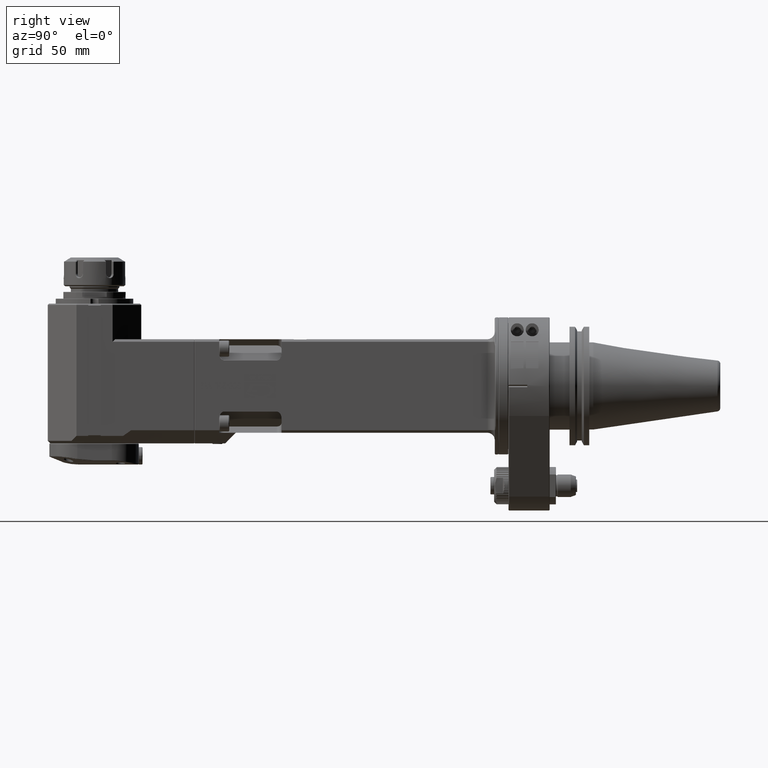
[diagram: clean part render]
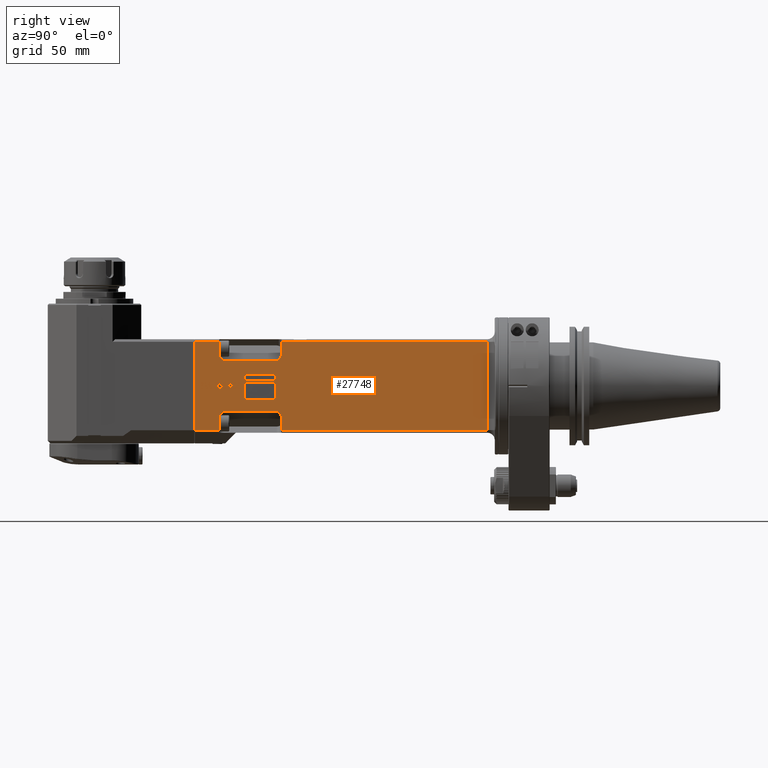
[diagram: same view with one face highlighted and labeled with its STEP entity id]
A machine part, right view. The second image highlights one B-rep face of the part: STEP entity #27748.
In plain terms, the highlighted planar face has unit normal (1, 0, -0).
Its self-contained STEP definition (entity closure, byte-faithful):
#538=FACE_BOUND('',#5712,.T.);
#539=FACE_BOUND('',#5713,.T.);
#540=FACE_BOUND('',#5714,.T.);
#541=FACE_BOUND('',#5715,.T.);
#542=FACE_BOUND('',#5716,.T.);
#543=FACE_BOUND('',#5717,.T.);
#544=FACE_BOUND('',#5718,.T.);
#545=FACE_BOUND('',#5719,.T.);
#546=FACE_BOUND('',#5720,.T.);
#547=FACE_BOUND('',#5721,.T.);
#548=FACE_BOUND('',#5722,.T.);
#549=FACE_BOUND('',#5723,.T.);
#550=FACE_BOUND('',#5724,.T.);
#643=ELLIPSE('',#30250,5.65685424949238,4.);
#644=ELLIPSE('',#30251,5.65685424949238,4.);
#645=ELLIPSE('',#30252,5.65685424949238,4.);
#646=ELLIPSE('',#30253,5.65685424949238,4.);
#647=ELLIPSE('',#30254,15.6597586137708,5.11067427372235);
#648=ELLIPSE('',#30255,63.0171389713676,10.6812482602766);
#649=ELLIPSE('',#30256,211.184832916971,20.2645928156447);
#650=ELLIPSE('',#30257,20.8021242351383,6.87575692583622);
#651=ELLIPSE('',#30258,2237.01354336817,62.4737983751614);
#652=ELLIPSE('',#30259,11.3334341898625,4.02425684300595);
#653=ELLIPSE('',#30260,21.5383808731348,3.9889650199828);
#654=ELLIPSE('',#30261,12.4227730511275,3.72513753825433);
#655=ELLIPSE('',#30262,515.432604065551,25.2864618681669);
#656=ELLIPSE('',#30263,20.7501760266395,4.72923969705623);
#657=ELLIPSE('',#30264,242.588961909696,18.9024033253464);
#658=ELLIPSE('',#30265,181.594066801803,9.83682545597316);
#659=ELLIPSE('',#30266,21.586435296731,3.7840306910963);
#660=ELLIPSE('',#30267,5.2992044251624,1.45810031590731);
#661=ELLIPSE('',#30268,105.663610139244,10.2892400435794);
#662=ELLIPSE('',#30269,9.56496345655275,3.21181826487127);
#663=ELLIPSE('',#30270,18.9053724432897,3.04635732493394);
#664=ELLIPSE('',#30271,45.9855523027786,6.85688270045976);
#665=ELLIPSE('',#30272,84.4286272446163,9.77996875638424);
#666=ELLIPSE('',#30273,61.1929984273283,7.71503504678625);
#667=ELLIPSE('',#30274,16.6379738504012,4.02963895603252);
#668=ELLIPSE('',#30275,93.3240955543924,9.60826771059708);
#669=ELLIPSE('',#30276,17.274533101145,2.68497790857421);
#670=ELLIPSE('',#30277,12.4167221570186,1.2714329716092);
#671=ELLIPSE('',#30278,14.8700543941453,3.49903198043268);
#672=ELLIPSE('',#30279,22.459113326356,4.07782101524966);
#673=ELLIPSE('',#30280,24.6421440174362,5.18209614968468);
#674=ELLIPSE('',#30281,59.6206907883007,8.23521548061957);
#675=ELLIPSE('',#30282,18.8079905720247,4.3386467912818);
#676=ELLIPSE('',#30283,61.1250199671475,9.58255724892328);
#677=ELLIPSE('',#30284,20.6181651526823,1.98883456680425);
#678=ELLIPSE('',#30285,3.47595638104611,0.110234774898915);
#679=ELLIPSE('',#30286,61.2248063631608,7.71703489786113);
#680=ELLIPSE('',#30287,16.6347550641683,4.02925330892726);
#681=ELLIPSE('',#30288,93.4088466089651,9.61267380369615);
#682=ELLIPSE('',#30289,216.491307017669,16.92873238245);
#683=ELLIPSE('',#30290,205.603863711571,11.1160686660709);
#684=ELLIPSE('',#30291,10.6036221588345,2.7546417543984);
#685=ELLIPSE('',#30292,10.4467640142544,2.98992445794681);
#686=ELLIPSE('',#30293,9.61557547637801,2.59206411765874);
#687=ELLIPSE('',#30294,14.2122497924354,2.9912738834623);
#688=ELLIPSE('',#30295,41.5621693362044,6.74851297665693);
#689=ELLIPSE('',#30296,29.0296168580593,5.5810162664177);
#690=ELLIPSE('',#30297,32.5884442249544,6.2891365587034);
#691=ELLIPSE('',#30298,16.9676813427654,4.30147971403748);
#692=ELLIPSE('',#30299,12.8536972838818,3.65993997888582);
#693=ELLIPSE('',#30300,5.94785494047754,2.14140818805179);
#694=ELLIPSE('',#30301,2.41229126850694,1.57006677064862);
#695=ELLIPSE('',#30302,69.2772808161666,10.0270410719038);
#696=ELLIPSE('',#30303,216.491307948523,16.9287324188656);
#697=ELLIPSE('',#30304,205.603863666063,11.1160686648385);
#698=ELLIPSE('',#30305,10.6175439547712,2.75643618418667);
#699=ELLIPSE('',#30306,10.4467640107867,2.98992445744263);
#700=ELLIPSE('',#30307,9.61557548505308,2.59206411883322);
#701=ELLIPSE('',#30308,14.2122498260303,2.99127388711941);
#702=ELLIPSE('',#30309,41.6636611569584,6.75676789639757);
#703=ELLIPSE('',#30310,29.0264550482812,5.58070303574778);
#704=ELLIPSE('',#30311,32.5480560844795,6.28527398974016);
#705=ELLIPSE('',#30312,16.9338491097883,4.29728263166024);
#706=ELLIPSE('',#30313,12.8635486466093,3.66130942758725);
#707=ELLIPSE('',#30314,5.95222622347425,2.14217682515007);
#708=ELLIPSE('',#30315,2.41310055265665,1.57028709180549);
#709=ELLIPSE('',#30316,69.3607538912344,10.0330360540755);
#710=ELLIPSE('',#30317,17.2749645836726,2.68501506493028);
#711=ELLIPSE('',#30318,12.4203850873891,1.2716265656971);
#712=ELLIPSE('',#30319,14.8773889441717,3.49985475062914);
#713=ELLIPSE('',#30320,22.475075967551,4.07924525511387);
#714=ELLIPSE('',#30321,24.637901738228,5.18163234999595);
#715=ELLIPSE('',#30322,59.8212932230837,8.24905434017942);
#716=ELLIPSE('',#30323,18.8083565555068,4.33869389179221);
#717=ELLIPSE('',#30324,61.2110688805257,9.58927818373487);
#718=ELLIPSE('',#30325,20.6176658368536,1.98879916829787);
#719=ELLIPSE('',#30326,3.47674677436192,0.110253526851791);
#1061=B_SPLINE_CURVE_WITH_KNOTS('',3,(#52153,#52154,#52155,#52156),
 .UNSPECIFIED.,.F.,.F.,(4,4),(0.,1.),.UNSPECIFIED.);
#1062=B_SPLINE_CURVE_WITH_KNOTS('',3,(#52158,#52159,#52160,#52161),
 .UNSPECIFIED.,.F.,.F.,(4,4),(0.,1.),.UNSPECIFIED.);
#1063=B_SPLINE_CURVE_WITH_KNOTS('',3,(#52169,#52170,#52171,#52172),
 .UNSPECIFIED.,.F.,.F.,(4,4),(0.,1.),.UNSPECIFIED.);
#1064=B_SPLINE_CURVE_WITH_KNOTS('',3,(#52178,#52179,#52180,#52181),
 .UNSPECIFIED.,.F.,.F.,(4,4),(0.,1.),.UNSPECIFIED.);
#1065=B_SPLINE_CURVE_WITH_KNOTS('',3,(#52187,#52188,#52189,#52190),
 .UNSPECIFIED.,.F.,.F.,(4,4),(0.,1.),.UNSPECIFIED.);
#1066=B_SPLINE_CURVE_WITH_KNOTS('',3,(#52192,#52193,#52194,#52195),
 .UNSPECIFIED.,.F.,.F.,(4,4),(0.,1.),.UNSPECIFIED.);
#1067=B_SPLINE_CURVE_WITH_KNOTS('',3,(#52205,#52206,#52207,#52208),
 .UNSPECIFIED.,.F.,.F.,(4,4),(0.,1.),.UNSPECIFIED.);
#1068=B_SPLINE_CURVE_WITH_KNOTS('',3,(#52210,#52211,#52212,#52213),
 .UNSPECIFIED.,.F.,.F.,(4,4),(0.,1.),.UNSPECIFIED.);
#1069=B_SPLINE_CURVE_WITH_KNOTS('',3,(#52215,#52216,#52217,#52218),
 .UNSPECIFIED.,.F.,.F.,(4,4),(0.,1.),.UNSPECIFIED.);
#1070=B_SPLINE_CURVE_WITH_KNOTS('',3,(#52220,#52221,#52222,#52223),
 .UNSPECIFIED.,.F.,.F.,(4,4),(0.,1.),.UNSPECIFIED.);
#1071=B_SPLINE_CURVE_WITH_KNOTS('',3,(#52227,#52228,#52229,#52230),
 .UNSPECIFIED.,.F.,.F.,(4,4),(0.,1.),.UNSPECIFIED.);
#1072=B_SPLINE_CURVE_WITH_KNOTS('',3,(#52240,#52241,#52242,#52243),
 .UNSPECIFIED.,.F.,.F.,(4,4),(0.,1.),.UNSPECIFIED.);
#1073=B_SPLINE_CURVE_WITH_KNOTS('',3,(#52247,#52248,#52249,#52250),
 .UNSPECIFIED.,.F.,.F.,(4,4),(0.,1.),.UNSPECIFIED.);
#1074=B_SPLINE_CURVE_WITH_KNOTS('',3,(#52252,#52253,#52254,#52255),
 .UNSPECIFIED.,.F.,.F.,(4,4),(0.,1.),.UNSPECIFIED.);
#1075=B_SPLINE_CURVE_WITH_KNOTS('',3,(#52259,#52260,#52261,#52262),
 .UNSPECIFIED.,.F.,.F.,(4,4),(0.,1.),.UNSPECIFIED.);
#1076=B_SPLINE_CURVE_WITH_KNOTS('',3,(#52264,#52265,#52266,#52267),
 .UNSPECIFIED.,.F.,.F.,(4,4),(0.,1.),.UNSPECIFIED.);
#1077=B_SPLINE_CURVE_WITH_KNOTS('',3,(#52269,#52270,#52271,#52272),
 .UNSPECIFIED.,.F.,.F.,(4,4),(0.,1.),.UNSPECIFIED.);
#1078=B_SPLINE_CURVE_WITH_KNOTS('',3,(#52276,#52277,#52278,#52279),
 .UNSPECIFIED.,.F.,.F.,(4,4),(0.,1.),.UNSPECIFIED.);
#1079=B_SPLINE_CURVE_WITH_KNOTS('',3,(#52283,#52284,#52285,#52286),
 .UNSPECIFIED.,.F.,.F.,(4,4),(0.,1.),.UNSPECIFIED.);
#1080=B_SPLINE_CURVE_WITH_KNOTS('',3,(#52291,#52292,#52293,#52294),
 .UNSPECIFIED.,.F.,.F.,(4,4),(0.,1.),.UNSPECIFIED.);
#1081=B_SPLINE_CURVE_WITH_KNOTS('',3,(#52297,#52298,#52299,#52300),
 .UNSPECIFIED.,.F.,.F.,(4,4),(0.,1.),.UNSPECIFIED.);
#1082=B_SPLINE_CURVE_WITH_KNOTS('',3,(#52302,#52303,#52304,#52305),
 .UNSPECIFIED.,.F.,.F.,(4,4),(0.,1.),.UNSPECIFIED.);
#1083=B_SPLINE_CURVE_WITH_KNOTS('',3,(#52313,#52314,#52315,#52316),
 .UNSPECIFIED.,.F.,.F.,(4,4),(0.,1.),.UNSPECIFIED.);
#1084=B_SPLINE_CURVE_WITH_KNOTS('',3,(#52318,#52319,#52320,#52321),
 .UNSPECIFIED.,.F.,.F.,(4,4),(0.,1.),.UNSPECIFIED.);
#1085=B_SPLINE_CURVE_WITH_KNOTS('',3,(#52322,#52323,#52324,#52325),
 .UNSPECIFIED.,.F.,.F.,(4,4),(0.,1.),.UNSPECIFIED.);
#1086=B_SPLINE_CURVE_WITH_KNOTS('',3,(#52342,#52343,#52344,#52345),
 .UNSPECIFIED.,.F.,.F.,(4,4),(0.,1.),.UNSPECIFIED.);
#1087=B_SPLINE_CURVE_WITH_KNOTS('',3,(#52353,#52354,#52355,#52356),
 .UNSPECIFIED.,.F.,.F.,(4,4),(0.,1.),.UNSPECIFIED.);
#1088=B_SPLINE_CURVE_WITH_KNOTS('',3,(#52358,#52359,#52360,#52361),
 .UNSPECIFIED.,.F.,.F.,(4,4),(0.,1.),.UNSPECIFIED.);
#1089=B_SPLINE_CURVE_WITH_KNOTS('',3,(#52363,#52364,#52365,#52366),
 .UNSPECIFIED.,.F.,.F.,(4,4),(0.,1.),.UNSPECIFIED.);
#1090=B_SPLINE_CURVE_WITH_KNOTS('',3,(#52380,#52381,#52382,#52383),
 .UNSPECIFIED.,.F.,.F.,(4,4),(0.,1.),.UNSPECIFIED.);
#1091=B_SPLINE_CURVE_WITH_KNOTS('',3,(#52388,#52389,#52390,#52391),
 .UNSPECIFIED.,.F.,.F.,(4,4),(0.,1.),.UNSPECIFIED.);
#1092=B_SPLINE_CURVE_WITH_KNOTS('',3,(#52394,#52395,#52396,#52397),
 .UNSPECIFIED.,.F.,.F.,(4,4),(0.,1.),.UNSPECIFIED.);
#1093=B_SPLINE_CURVE_WITH_KNOTS('',3,(#52399,#52400,#52401,#52402),
 .UNSPECIFIED.,.F.,.F.,(4,4),(0.,1.),.UNSPECIFIED.);
#1094=B_SPLINE_CURVE_WITH_KNOTS('',3,(#52410,#52411,#52412,#52413),
 .UNSPECIFIED.,.F.,.F.,(4,4),(0.,1.),.UNSPECIFIED.);
#1095=B_SPLINE_CURVE_WITH_KNOTS('',3,(#52415,#52416,#52417,#52418),
 .UNSPECIFIED.,.F.,.F.,(4,4),(0.,1.),.UNSPECIFIED.);
#1096=B_SPLINE_CURVE_WITH_KNOTS('',3,(#52419,#52420,#52421,#52422),
 .UNSPECIFIED.,.F.,.F.,(4,4),(0.,1.),.UNSPECIFIED.);
#1097=B_SPLINE_CURVE_WITH_KNOTS('',3,(#52453,#52454,#52455,#52456),
 .UNSPECIFIED.,.F.,.F.,(4,4),(0.,1.),.UNSPECIFIED.);
#1098=B_SPLINE_CURVE_WITH_KNOTS('',3,(#52460,#52461,#52462,#52463),
 .UNSPECIFIED.,.F.,.F.,(4,4),(0.,1.),.UNSPECIFIED.);
#1099=B_SPLINE_CURVE_WITH_KNOTS('',3,(#52465,#52466,#52467,#52468),
 .UNSPECIFIED.,.F.,.F.,(4,4),(0.,1.),.UNSPECIFIED.);
#1100=B_SPLINE_CURVE_WITH_KNOTS('',3,(#52474,#52475,#52476,#52477),
 .UNSPECIFIED.,.F.,.F.,(4,4),(0.,1.),.UNSPECIFIED.);
#1101=B_SPLINE_CURVE_WITH_KNOTS('',3,(#52479,#52480,#52481,#52482),
 .UNSPECIFIED.,.F.,.F.,(4,4),(0.,1.),.UNSPECIFIED.);
#1102=B_SPLINE_CURVE_WITH_KNOTS('',3,(#52486,#52487,#52488,#52489),
 .UNSPECIFIED.,.F.,.F.,(4,4),(0.,1.),.UNSPECIFIED.);
#1103=B_SPLINE_CURVE_WITH_KNOTS('',3,(#52491,#52492,#52493,#52494),
 .UNSPECIFIED.,.F.,.F.,(4,4),(0.,1.),.UNSPECIFIED.);
#1104=B_SPLINE_CURVE_WITH_KNOTS('',3,(#52502,#52503,#52504,#52505),
 .UNSPECIFIED.,.F.,.F.,(4,4),(0.,1.),.UNSPECIFIED.);
#1105=B_SPLINE_CURVE_WITH_KNOTS('',3,(#52517,#52518,#52519,#52520),
 .UNSPECIFIED.,.F.,.F.,(4,4),(0.,1.),.UNSPECIFIED.);
#1106=B_SPLINE_CURVE_WITH_KNOTS('',3,(#52526,#52527,#52528,#52529),
 .UNSPECIFIED.,.F.,.F.,(4,4),(0.,1.),.UNSPECIFIED.);
#1107=B_SPLINE_CURVE_WITH_KNOTS('',3,(#52530,#52531,#52532,#52533),
 .UNSPECIFIED.,.F.,.F.,(4,4),(0.,1.),.UNSPECIFIED.);
#1108=B_SPLINE_CURVE_WITH_KNOTS('',3,(#52544,#52545,#52546,#52547),
 .UNSPECIFIED.,.F.,.F.,(4,4),(0.,1.),.UNSPECIFIED.);
#1109=B_SPLINE_CURVE_WITH_KNOTS('',3,(#52551,#52552,#52553,#52554),
 .UNSPECIFIED.,.F.,.F.,(4,4),(0.,1.),.UNSPECIFIED.);
#1110=B_SPLINE_CURVE_WITH_KNOTS('',3,(#52556,#52557,#52558,#52559),
 .UNSPECIFIED.,.F.,.F.,(4,4),(0.,1.),.UNSPECIFIED.);
#1111=B_SPLINE_CURVE_WITH_KNOTS('',3,(#52565,#52566,#52567,#52568),
 .UNSPECIFIED.,.F.,.F.,(4,4),(0.,1.),.UNSPECIFIED.);
#1112=B_SPLINE_CURVE_WITH_KNOTS('',3,(#52570,#52571,#52572,#52573),
 .UNSPECIFIED.,.F.,.F.,(4,4),(0.,1.),.UNSPECIFIED.);
#1113=B_SPLINE_CURVE_WITH_KNOTS('',3,(#52577,#52578,#52579,#52580),
 .UNSPECIFIED.,.F.,.F.,(4,4),(0.,1.),.UNSPECIFIED.);
#1114=B_SPLINE_CURVE_WITH_KNOTS('',3,(#52582,#52583,#52584,#52585),
 .UNSPECIFIED.,.F.,.F.,(4,4),(0.,1.),.UNSPECIFIED.);
#1115=B_SPLINE_CURVE_WITH_KNOTS('',3,(#52593,#52594,#52595,#52596),
 .UNSPECIFIED.,.F.,.F.,(4,4),(0.,1.),.UNSPECIFIED.);
#1116=B_SPLINE_CURVE_WITH_KNOTS('',3,(#52608,#52609,#52610,#52611),
 .UNSPECIFIED.,.F.,.F.,(4,4),(0.,1.),.UNSPECIFIED.);
#1117=B_SPLINE_CURVE_WITH_KNOTS('',3,(#52617,#52618,#52619,#52620),
 .UNSPECIFIED.,.F.,.F.,(4,4),(0.,1.),.UNSPECIFIED.);
#1118=B_SPLINE_CURVE_WITH_KNOTS('',3,(#52621,#52622,#52623,#52624),
 .UNSPECIFIED.,.F.,.F.,(4,4),(0.,1.),.UNSPECIFIED.);
#1119=B_SPLINE_CURVE_WITH_KNOTS('',3,(#52633,#52634,#52635,#52636),
 .UNSPECIFIED.,.F.,.F.,(4,4),(0.,1.),.UNSPECIFIED.);
#1120=B_SPLINE_CURVE_WITH_KNOTS('',3,(#52644,#52645,#52646,#52647),
 .UNSPECIFIED.,.F.,.F.,(4,4),(0.,1.),.UNSPECIFIED.);
#1121=B_SPLINE_CURVE_WITH_KNOTS('',3,(#52649,#52650,#52651,#52652),
 .UNSPECIFIED.,.F.,.F.,(4,4),(0.,1.),.UNSPECIFIED.);
#1122=B_SPLINE_CURVE_WITH_KNOTS('',3,(#52654,#52655,#52656,#52657),
 .UNSPECIFIED.,.F.,.F.,(4,4),(0.,1.),.UNSPECIFIED.);
#1123=B_SPLINE_CURVE_WITH_KNOTS('',3,(#52671,#52672,#52673,#52674),
 .UNSPECIFIED.,.F.,.F.,(4,4),(0.,1.),.UNSPECIFIED.);
#1124=B_SPLINE_CURVE_WITH_KNOTS('',3,(#52679,#52680,#52681,#52682),
 .UNSPECIFIED.,.F.,.F.,(4,4),(0.,1.),.UNSPECIFIED.);
#3979=FACE_OUTER_BOUND('',#5711,.T.);
#5711=EDGE_LOOP('',(#22312,#22313,#22314,#22315,#22316,#22317,#22318,#22319,
#22320,#22321,#22322,#22323,#22324,#22325,#22326,#22327));
#5712=EDGE_LOOP('',(#22328,#22329,#22330,#22331));
#5713=EDGE_LOOP('',(#22332,#22333,#22334,#22335));
#5714=EDGE_LOOP('',(#22336,#22337,#22338,#22339,#22340,#22341,#22342,#22343,
#22344,#22345,#22346,#22347,#22348,#22349,#22350,#22351,#22352,#22353,#22354,
#22355,#22356,#22357,#22358,#22359,#22360,#22361,#22362));
#5715=EDGE_LOOP('',(#22363,#22364,#22365,#22366,#22367,#22368,#22369,#22370,
#22371,#22372,#22373,#22374,#22375,#22376,#22377,#22378,#22379,#22380,#22381,
#22382));
#5716=EDGE_LOOP('',(#22383,#22384,#22385,#22386,#22387,#22388,#22389,#22390));
#5717=EDGE_LOOP('',(#22391,#22392,#22393,#22394));
#5718=EDGE_LOOP('',(#22395,#22396,#22397,#22398,#22399,#22400,#22401,#22402,
#22403,#22404,#22405,#22406,#22407,#22408,#22409,#22410,#22411,#22412,#22413,
#22414));
#5719=EDGE_LOOP('',(#22415,#22416,#22417,#22418,#22419,#22420,#22421,#22422));
#5720=EDGE_LOOP('',(#22423,#22424,#22425,#22426,#22427,#22428));
#5721=EDGE_LOOP('',(#22429,#22430,#22431,#22432));
#5722=EDGE_LOOP('',(#22433,#22434,#22435,#22436,#22437,#22438,#22439,#22440,
#22441,#22442,#22443,#22444,#22445,#22446,#22447,#22448,#22449,#22450,#22451,
#22452,#22453,#22454,#22455,#22456,#22457,#22458,#22459,#22460,#22461));
#5723=EDGE_LOOP('',(#22462,#22463,#22464,#22465,#22466,#22467,#22468,#22469,
#22470,#22471,#22472,#22473,#22474,#22475,#22476,#22477,#22478,#22479,#22480,
#22481,#22482,#22483,#22484,#22485,#22486,#22487,#22488,#22489,#22490));
#5724=EDGE_LOOP('',(#22491,#22492,#22493,#22494,#22495,#22496,#22497,#22498,
#22499,#22500,#22501,#22502,#22503,#22504,#22505,#22506,#22507,#22508,#22509,
#22510));
#7267=LINE('',#44121,#9464);
#7738=LINE('',#52044,#9935);
#7742=LINE('',#52100,#9939);
#7743=LINE('',#52102,#9940);
#7744=LINE('',#52104,#9941);
#7745=LINE('',#52108,#9942);
#7746=LINE('',#52112,#9943);
#7747=LINE('',#52113,#9944);
#7748=LINE('',#52115,#9945);
#7749=LINE('',#52119,#9946);
#7750=LINE('',#52123,#9947);
#7751=LINE('',#52124,#9948);
#7752=LINE('',#52127,#9949);
#7753=LINE('',#52129,#9950);
#7754=LINE('',#52131,#9951);
#7755=LINE('',#52132,#9952);
#7756=LINE('',#52135,#9953);
#7757=LINE('',#52137,#9954);
#7758=LINE('',#52139,#9955);
#7759=LINE('',#52140,#9956);
#7760=LINE('',#52143,#9957);
#7761=LINE('',#52145,#9958);
#7762=LINE('',#52147,#9959);
#7763=LINE('',#52149,#9960);
#7764=LINE('',#52185,#9961);
#7765=LINE('',#52224,#9962);
#7766=LINE('',#52232,#9963);
#7767=LINE('',#52245,#9964);
#7768=LINE('',#52328,#9965);
#7769=LINE('',#52330,#9966);
#7770=LINE('',#52332,#9967);
#7771=LINE('',#52333,#9968);
#7772=LINE('',#52336,#9969);
#7773=LINE('',#52338,#9970);
#7774=LINE('',#52340,#9971);
#7775=LINE('',#52370,#9972);
#7776=LINE('',#52425,#9973);
#7777=LINE('',#52427,#9974);
#7778=LINE('',#52429,#9975);
#7779=LINE('',#52431,#9976);
#7780=LINE('',#52433,#9977);
#7781=LINE('',#52434,#9978);
#7782=LINE('',#52437,#9979);
#7783=LINE('',#52439,#9980);
#7784=LINE('',#52441,#9981);
#7785=LINE('',#52442,#9982);
#7786=LINE('',#52447,#9983);
#7787=LINE('',#52470,#9984);
#7788=LINE('',#52472,#9985);
#7789=LINE('',#52498,#9986);
#7790=LINE('',#52538,#9987);
#7791=LINE('',#52561,#9988);
#7792=LINE('',#52563,#9989);
#7793=LINE('',#52589,#9990);
#7794=LINE('',#52627,#9991);
#7795=LINE('',#52629,#9992);
#7796=LINE('',#52631,#9993);
#7797=LINE('',#52661,#9994);
#9464=VECTOR('',#34271,71.);
#9935=VECTOR('',#35820,165.);
#9939=VECTOR('',#35836,71.);
#9940=VECTOR('',#35837,19.5);
#9941=VECTOR('',#35838,9.313708498985);
#9942=VECTOR('',#35841,42.);
#9943=VECTOR('',#35844,9.313708498985);
#9944=VECTOR('',#35845,165.);
#9945=VECTOR('',#35846,9.313708498985);
#9946=VECTOR('',#35849,42.);
#9947=VECTOR('',#35852,9.313708498985);
#9948=VECTOR('',#35853,19.5);
#9949=VECTOR('',#35854,13.7664737594);
#9950=VECTOR('',#35855,25.01386601979);
#9951=VECTOR('',#35856,13.7664737594);
#9952=VECTOR('',#35857,25.01386601979);
#9953=VECTOR('',#35858,5.291002751506);
#9954=VECTOR('',#35859,25.0363228398);
#9955=VECTOR('',#35860,5.291002751506);
#9956=VECTOR('',#35861,25.0363228398);
#9957=VECTOR('',#35862,1.203956305981);
#9958=VECTOR('',#35863,0.5900408327579);
#9959=VECTOR('',#35864,1.73601962370604);
#9960=VECTOR('',#35865,1.858799308538);
#9961=VECTOR('',#35880,0.514464304002981);
#9962=VECTOR('',#35889,0.9311050921679);
#9963=VECTOR('',#35890,0.487375960250209);
#9964=VECTOR('',#35897,0.1227831840515);
#9965=VECTOR('',#35914,1.545020341873);
#9966=VECTOR('',#35915,0.6173260509968);
#9967=VECTOR('',#35916,1.545020341873);
#9968=VECTOR('',#35917,0.6173260509968);
#9969=VECTOR('',#35918,2.012279033661);
#9970=VECTOR('',#35919,0.5900409445167);
#9971=VECTOR('',#35920,2.711460590363);
#9972=VECTOR('',#35929,0.522451795575016);
#9973=VECTOR('',#35948,2.561392784119);
#9974=VECTOR('',#35949,5.);
#9975=VECTOR('',#35950,0.5422925949097);
#9976=VECTOR('',#35951,4.409959055483);
#9977=VECTOR('',#35952,2.019100189209);
#9978=VECTOR('',#35953,0.5900409445167);
#9979=VECTOR('',#35954,0.5729866027832);
#9980=VECTOR('',#35955,0.6991814821959);
#9981=VECTOR('',#35956,0.5729866027832);
#9982=VECTOR('',#35957,0.6991814821959);
#9983=VECTOR('',#35960,0.50800141277372);
#9984=VECTOR('',#35967,0.541991682601083);
#9985=VECTOR('',#35968,0.0787405156947035);
#9986=VECTOR('',#35973,0.513104995107587);
#9987=VECTOR('',#35992,0.50800141277372);
#9988=VECTOR('',#35999,0.541991682601083);
#9989=VECTOR('',#36000,0.0787405156947035);
#9990=VECTOR('',#36005,0.513104995107587);
#9991=VECTOR('',#36022,2.012276649475);
#9992=VECTOR('',#36023,0.5900409445167);
#9993=VECTOR('',#36024,2.711458206177);
#9994=VECTOR('',#36033,0.522451795575016);
#11895=VERTEX_POINT('',#44118);
#11896=VERTEX_POINT('',#44120);
#12403=VERTEX_POINT('',#52042);
#12406=VERTEX_POINT('',#52098);
#12407=VERTEX_POINT('',#52099);
#12408=VERTEX_POINT('',#52101);
#12409=VERTEX_POINT('',#52103);
#12410=VERTEX_POINT('',#52105);
#12411=VERTEX_POINT('',#52107);
#12412=VERTEX_POINT('',#52109);
#12413=VERTEX_POINT('',#52111);
#12414=VERTEX_POINT('',#52114);
#12415=VERTEX_POINT('',#52116);
#12416=VERTEX_POINT('',#52118);
#12417=VERTEX_POINT('',#52120);
#12418=VERTEX_POINT('',#52122);
#12419=VERTEX_POINT('',#52125);
#12420=VERTEX_POINT('',#52126);
#12421=VERTEX_POINT('',#52128);
#12422=VERTEX_POINT('',#52130);
#12423=VERTEX_POINT('',#52133);
#12424=VERTEX_POINT('',#52134);
#12425=VERTEX_POINT('',#52136);
#12426=VERTEX_POINT('',#52138);
#12427=VERTEX_POINT('',#52141);
#12428=VERTEX_POINT('',#52142);
#12429=VERTEX_POINT('',#52144);
#12430=VERTEX_POINT('',#52146);
#12431=VERTEX_POINT('',#52148);
#12432=VERTEX_POINT('',#52150);
#12433=VERTEX_POINT('',#52152);
#12434=VERTEX_POINT('',#52157);
#12435=VERTEX_POINT('',#52162);
#12436=VERTEX_POINT('',#52164);
#12437=VERTEX_POINT('',#52166);
#12438=VERTEX_POINT('',#52168);
#12439=VERTEX_POINT('',#52173);
#12440=VERTEX_POINT('',#52175);
#12441=VERTEX_POINT('',#52177);
#12442=VERTEX_POINT('',#52182);
#12443=VERTEX_POINT('',#52184);
#12444=VERTEX_POINT('',#52186);
#12445=VERTEX_POINT('',#52191);
#12446=VERTEX_POINT('',#52196);
#12447=VERTEX_POINT('',#52198);
#12448=VERTEX_POINT('',#52200);
#12449=VERTEX_POINT('',#52202);
#12450=VERTEX_POINT('',#52204);
#12451=VERTEX_POINT('',#52209);
#12452=VERTEX_POINT('',#52214);
#12453=VERTEX_POINT('',#52219);
#12454=VERTEX_POINT('',#52225);
#12455=VERTEX_POINT('',#52226);
#12456=VERTEX_POINT('',#52231);
#12457=VERTEX_POINT('',#52233);
#12458=VERTEX_POINT('',#52235);
#12459=VERTEX_POINT('',#52237);
#12460=VERTEX_POINT('',#52239);
#12461=VERTEX_POINT('',#52244);
#12462=VERTEX_POINT('',#52246);
#12463=VERTEX_POINT('',#52251);
#12464=VERTEX_POINT('',#52256);
#12465=VERTEX_POINT('',#52258);
#12466=VERTEX_POINT('',#52263);
#12467=VERTEX_POINT('',#52268);
#12468=VERTEX_POINT('',#52273);
#12469=VERTEX_POINT('',#52275);
#12470=VERTEX_POINT('',#52280);
#12471=VERTEX_POINT('',#52282);
#12472=VERTEX_POINT('',#52287);
#12473=VERTEX_POINT('',#52289);
#12474=VERTEX_POINT('',#52295);
#12475=VERTEX_POINT('',#52296);
#12476=VERTEX_POINT('',#52301);
#12477=VERTEX_POINT('',#52306);
#12478=VERTEX_POINT('',#52308);
#12479=VERTEX_POINT('',#52310);
#12480=VERTEX_POINT('',#52312);
#12481=VERTEX_POINT('',#52317);
#12482=VERTEX_POINT('',#52326);
#12483=VERTEX_POINT('',#52327);
#12484=VERTEX_POINT('',#52329);
#12485=VERTEX_POINT('',#52331);
#12486=VERTEX_POINT('',#52334);
#12487=VERTEX_POINT('',#52335);
#12488=VERTEX_POINT('',#52337);
#12489=VERTEX_POINT('',#52339);
#12490=VERTEX_POINT('',#52341);
#12491=VERTEX_POINT('',#52346);
#12492=VERTEX_POINT('',#52348);
#12493=VERTEX_POINT('',#52350);
#12494=VERTEX_POINT('',#52352);
#12495=VERTEX_POINT('',#52357);
#12496=VERTEX_POINT('',#52362);
#12497=VERTEX_POINT('',#52367);
#12498=VERTEX_POINT('',#52369);
#12499=VERTEX_POINT('',#52371);
#12500=VERTEX_POINT('',#52373);
#12501=VERTEX_POINT('',#52375);
#12502=VERTEX_POINT('',#52377);
#12503=VERTEX_POINT('',#52379);
#12504=VERTEX_POINT('',#52384);
#12505=VERTEX_POINT('',#52386);
#12506=VERTEX_POINT('',#52392);
#12507=VERTEX_POINT('',#52393);
#12508=VERTEX_POINT('',#52398);
#12509=VERTEX_POINT('',#52403);
#12510=VERTEX_POINT('',#52405);
#12511=VERTEX_POINT('',#52407);
#12512=VERTEX_POINT('',#52409);
#12513=VERTEX_POINT('',#52414);
#12514=VERTEX_POINT('',#52423);
#12515=VERTEX_POINT('',#52424);
#12516=VERTEX_POINT('',#52426);
#12517=VERTEX_POINT('',#52428);
#12518=VERTEX_POINT('',#52430);
#12519=VERTEX_POINT('',#52432);
#12520=VERTEX_POINT('',#52435);
#12521=VERTEX_POINT('',#52436);
#12522=VERTEX_POINT('',#52438);
#12523=VERTEX_POINT('',#52440);
#12524=VERTEX_POINT('',#52443);
#12525=VERTEX_POINT('',#52444);
#12526=VERTEX_POINT('',#52446);
#12527=VERTEX_POINT('',#52448);
#12528=VERTEX_POINT('',#52450);
#12529=VERTEX_POINT('',#52452);
#12530=VERTEX_POINT('',#52457);
#12531=VERTEX_POINT('',#52459);
#12532=VERTEX_POINT('',#52464);
#12533=VERTEX_POINT('',#52469);
#12534=VERTEX_POINT('',#52471);
#12535=VERTEX_POINT('',#52473);
#12536=VERTEX_POINT('',#52478);
#12537=VERTEX_POINT('',#52483);
#12538=VERTEX_POINT('',#52485);
#12539=VERTEX_POINT('',#52490);
#12540=VERTEX_POINT('',#52495);
#12541=VERTEX_POINT('',#52497);
#12542=VERTEX_POINT('',#52499);
#12543=VERTEX_POINT('',#52501);
#12544=VERTEX_POINT('',#52506);
#12545=VERTEX_POINT('',#52508);
#12546=VERTEX_POINT('',#52510);
#12547=VERTEX_POINT('',#52512);
#12548=VERTEX_POINT('',#52514);
#12549=VERTEX_POINT('',#52516);
#12550=VERTEX_POINT('',#52521);
#12551=VERTEX_POINT('',#52523);
#12552=VERTEX_POINT('',#52525);
#12553=VERTEX_POINT('',#52534);
#12554=VERTEX_POINT('',#52535);
#12555=VERTEX_POINT('',#52537);
#12556=VERTEX_POINT('',#52539);
#12557=VERTEX_POINT('',#52541);
#12558=VERTEX_POINT('',#52543);
#12559=VERTEX_POINT('',#52548);
#12560=VERTEX_POINT('',#52550);
#12561=VERTEX_POINT('',#52555);
#12562=VERTEX_POINT('',#52560);
#12563=VERTEX_POINT('',#52562);
#12564=VERTEX_POINT('',#52564);
#12565=VERTEX_POINT('',#52569);
#12566=VERTEX_POINT('',#52574);
#12567=VERTEX_POINT('',#52576);
#12568=VERTEX_POINT('',#52581);
#12569=VERTEX_POINT('',#52586);
#12570=VERTEX_POINT('',#52588);
#12571=VERTEX_POINT('',#52590);
#12572=VERTEX_POINT('',#52592);
#12573=VERTEX_POINT('',#52597);
#12574=VERTEX_POINT('',#52599);
#12575=VERTEX_POINT('',#52601);
#12576=VERTEX_POINT('',#52603);
#12577=VERTEX_POINT('',#52605);
#12578=VERTEX_POINT('',#52607);
#12579=VERTEX_POINT('',#52612);
#12580=VERTEX_POINT('',#52614);
#12581=VERTEX_POINT('',#52616);
#12582=VERTEX_POINT('',#52625);
#12583=VERTEX_POINT('',#52626);
#12584=VERTEX_POINT('',#52628);
#12585=VERTEX_POINT('',#52630);
#12586=VERTEX_POINT('',#52632);
#12587=VERTEX_POINT('',#52637);
#12588=VERTEX_POINT('',#52639);
#12589=VERTEX_POINT('',#52641);
#12590=VERTEX_POINT('',#52643);
#12591=VERTEX_POINT('',#52648);
#12592=VERTEX_POINT('',#52653);
#12593=VERTEX_POINT('',#52658);
#12594=VERTEX_POINT('',#52660);
#12595=VERTEX_POINT('',#52662);
#12596=VERTEX_POINT('',#52664);
#12597=VERTEX_POINT('',#52666);
#12598=VERTEX_POINT('',#52668);
#12599=VERTEX_POINT('',#52670);
#12600=VERTEX_POINT('',#52675);
#12601=VERTEX_POINT('',#52677);
#15123=EDGE_CURVE('',#11896,#11895,#7267,.T.);
#15930=EDGE_CURVE('',#12403,#11895,#7738,.T.);
#15937=EDGE_CURVE('',#12406,#12407,#7742,.T.);
#15938=EDGE_CURVE('',#12406,#12408,#7743,.T.);
#15939=EDGE_CURVE('',#12408,#12409,#7744,.T.);
#15940=EDGE_CURVE('',#12409,#12410,#643,.T.);
#15941=EDGE_CURVE('',#12411,#12410,#7745,.T.);
#15942=EDGE_CURVE('',#12411,#12412,#644,.T.);
#15943=EDGE_CURVE('',#12413,#12412,#7746,.T.);
#15944=EDGE_CURVE('',#12413,#11896,#7747,.T.);
#15945=EDGE_CURVE('',#12403,#12414,#7748,.T.);
#15946=EDGE_CURVE('',#12414,#12415,#645,.T.);
#15947=EDGE_CURVE('',#12415,#12416,#7749,.T.);
#15948=EDGE_CURVE('',#12416,#12417,#646,.T.);
#15949=EDGE_CURVE('',#12418,#12417,#7750,.T.);
#15950=EDGE_CURVE('',#12407,#12418,#7751,.T.);
#15951=EDGE_CURVE('',#12419,#12420,#7752,.T.);
#15952=EDGE_CURVE('',#12421,#12419,#7753,.T.);
#15953=EDGE_CURVE('',#12422,#12421,#7754,.T.);
#15954=EDGE_CURVE('',#12420,#12422,#7755,.T.);
#15955=EDGE_CURVE('',#12423,#12424,#7756,.T.);
#15956=EDGE_CURVE('',#12425,#12423,#7757,.T.);
#15957=EDGE_CURVE('',#12426,#12425,#7758,.T.);
#15958=EDGE_CURVE('',#12424,#12426,#7759,.T.);
#15959=EDGE_CURVE('',#12427,#12428,#7760,.T.);
#15960=EDGE_CURVE('',#12429,#12427,#7761,.T.);
#15961=EDGE_CURVE('',#12430,#12429,#7762,.T.);
#15962=EDGE_CURVE('',#12431,#12430,#7763,.T.);
#15963=EDGE_CURVE('',#12432,#12431,#647,.T.);
#15964=EDGE_CURVE('',#12433,#12432,#1061,.T.);
#15965=EDGE_CURVE('',#12434,#12433,#1062,.T.);
#15966=EDGE_CURVE('',#12435,#12434,#648,.T.);
#15967=EDGE_CURVE('',#12436,#12435,#649,.T.);
#15968=EDGE_CURVE('',#12437,#12436,#650,.T.);
#15969=EDGE_CURVE('',#12438,#12437,#1063,.T.);
#15970=EDGE_CURVE('',#12439,#12438,#651,.T.);
#15971=EDGE_CURVE('',#12440,#12439,#652,.T.);
#15972=EDGE_CURVE('',#12441,#12440,#1064,.T.);
#15973=EDGE_CURVE('',#12442,#12441,#653,.T.);
#15974=EDGE_CURVE('',#12443,#12442,#7764,.T.);
#15975=EDGE_CURVE('',#12444,#12443,#1065,.T.);
#15976=EDGE_CURVE('',#12445,#12444,#1066,.T.);
#15977=EDGE_CURVE('',#12446,#12445,#654,.T.);
#15978=EDGE_CURVE('',#12447,#12446,#655,.T.);
#15979=EDGE_CURVE('',#12448,#12447,#656,.T.);
#15980=EDGE_CURVE('',#12449,#12448,#657,.T.);
#15981=EDGE_CURVE('',#12450,#12449,#1067,.T.);
#15982=EDGE_CURVE('',#12451,#12450,#1068,.T.);
#15983=EDGE_CURVE('',#12452,#12451,#1069,.T.);
#15984=EDGE_CURVE('',#12453,#12452,#1070,.T.);
#15985=EDGE_CURVE('',#12428,#12453,#7765,.T.);
#15986=EDGE_CURVE('',#12454,#12455,#1071,.T.);
#15987=EDGE_CURVE('',#12456,#12454,#7766,.T.);
#15988=EDGE_CURVE('',#12457,#12456,#658,.T.);
#15989=EDGE_CURVE('',#12458,#12457,#659,.T.);
#15990=EDGE_CURVE('',#12459,#12458,#660,.T.);
#15991=EDGE_CURVE('',#12460,#12459,#1072,.T.);
#15992=EDGE_CURVE('',#12461,#12460,#7767,.T.);
#15993=EDGE_CURVE('',#12462,#12461,#1073,.T.);
#15994=EDGE_CURVE('',#12463,#12462,#1074,.T.);
#15995=EDGE_CURVE('',#12464,#12463,#661,.T.);
#15996=EDGE_CURVE('',#12465,#12464,#1075,.T.);
#15997=EDGE_CURVE('',#12466,#12465,#1076,.T.);
#15998=EDGE_CURVE('',#12467,#12466,#1077,.T.);
#15999=EDGE_CURVE('',#12468,#12467,#662,.T.);
#16000=EDGE_CURVE('',#12469,#12468,#1078,.T.);
#16001=EDGE_CURVE('',#12470,#12469,#663,.T.);
#16002=EDGE_CURVE('',#12471,#12470,#1079,.T.);
#16003=EDGE_CURVE('',#12472,#12471,#664,.T.);
#16004=EDGE_CURVE('',#12473,#12472,#665,.T.);
#16005=EDGE_CURVE('',#12455,#12473,#1080,.T.);
#16006=EDGE_CURVE('',#12474,#12475,#1081,.T.);
#16007=EDGE_CURVE('',#12476,#12474,#1082,.T.);
#16008=EDGE_CURVE('',#12477,#12476,#666,.T.);
#16009=EDGE_CURVE('',#12478,#12477,#667,.T.);
#16010=EDGE_CURVE('',#12479,#12478,#668,.T.);
#16011=EDGE_CURVE('',#12480,#12479,#1083,.T.);
#16012=EDGE_CURVE('',#12481,#12480,#1084,.T.);
#16013=EDGE_CURVE('',#12475,#12481,#1085,.T.);
#16014=EDGE_CURVE('',#12482,#12483,#7768,.T.);
#16015=EDGE_CURVE('',#12484,#12482,#7769,.T.);
#16016=EDGE_CURVE('',#12485,#12484,#7770,.T.);
#16017=EDGE_CURVE('',#12483,#12485,#7771,.T.);
#16018=EDGE_CURVE('',#12486,#12487,#7772,.T.);
#16019=EDGE_CURVE('',#12488,#12486,#7773,.T.);
#16020=EDGE_CURVE('',#12489,#12488,#7774,.T.);
#16021=EDGE_CURVE('',#12490,#12489,#1086,.T.);
#16022=EDGE_CURVE('',#12491,#12490,#669,.T.);
#16023=EDGE_CURVE('',#12492,#12491,#670,.T.);
#16024=EDGE_CURVE('',#12493,#12492,#671,.T.);
#16025=EDGE_CURVE('',#12494,#12493,#1087,.T.);
#16026=EDGE_CURVE('',#12495,#12494,#1088,.T.);
#16027=EDGE_CURVE('',#12496,#12495,#1089,.T.);
#16028=EDGE_CURVE('',#12497,#12496,#672,.T.);
#16029=EDGE_CURVE('',#12498,#12497,#7775,.T.);
#16030=EDGE_CURVE('',#12499,#12498,#673,.T.);
#16031=EDGE_CURVE('',#12500,#12499,#674,.T.);
#16032=EDGE_CURVE('',#12501,#12500,#675,.T.);
#16033=EDGE_CURVE('',#12502,#12501,#676,.T.);
#16034=EDGE_CURVE('',#12503,#12502,#1090,.T.);
#16035=EDGE_CURVE('',#12504,#12503,#677,.T.);
#16036=EDGE_CURVE('',#12505,#12504,#678,.T.);
#16037=EDGE_CURVE('',#12487,#12505,#1091,.T.);
#16038=EDGE_CURVE('',#12506,#12507,#1092,.T.);
#16039=EDGE_CURVE('',#12508,#12506,#1093,.T.);
#16040=EDGE_CURVE('',#12509,#12508,#679,.T.);
#16041=EDGE_CURVE('',#12510,#12509,#680,.T.);
#16042=EDGE_CURVE('',#12511,#12510,#681,.T.);
#16043=EDGE_CURVE('',#12512,#12511,#1094,.T.);
#16044=EDGE_CURVE('',#12513,#12512,#1095,.T.);
#16045=EDGE_CURVE('',#12507,#12513,#1096,.T.);
#16046=EDGE_CURVE('',#12514,#12515,#7776,.T.);
#16047=EDGE_CURVE('',#12516,#12514,#7777,.T.);
#16048=EDGE_CURVE('',#12517,#12516,#7778,.T.);
#16049=EDGE_CURVE('',#12518,#12517,#7779,.T.);
#16050=EDGE_CURVE('',#12519,#12518,#7780,.T.);
#16051=EDGE_CURVE('',#12515,#12519,#7781,.T.);
#16052=EDGE_CURVE('',#12520,#12521,#7782,.T.);
#16053=EDGE_CURVE('',#12522,#12520,#7783,.T.);
#16054=EDGE_CURVE('',#12523,#12522,#7784,.T.);
#16055=EDGE_CURVE('',#12521,#12523,#7785,.T.);
#16056=EDGE_CURVE('',#12524,#12525,#682,.T.);
#16057=EDGE_CURVE('',#12526,#12524,#7786,.T.);
#16058=EDGE_CURVE('',#12527,#12526,#683,.T.);
#16059=EDGE_CURVE('',#12528,#12527,#684,.T.);
#16060=EDGE_CURVE('',#12529,#12528,#1097,.T.);
#16061=EDGE_CURVE('',#12530,#12529,#685,.T.);
#16062=EDGE_CURVE('',#12531,#12530,#1098,.T.);
#16063=EDGE_CURVE('',#12532,#12531,#1099,.T.);
#16064=EDGE_CURVE('',#12533,#12532,#7787,.T.);
#16065=EDGE_CURVE('',#12534,#12533,#7788,.T.);
#16066=EDGE_CURVE('',#12535,#12534,#1100,.T.);
#16067=EDGE_CURVE('',#12536,#12535,#1101,.T.);
#16068=EDGE_CURVE('',#12537,#12536,#686,.T.);
#16069=EDGE_CURVE('',#12538,#12537,#1102,.T.);
#16070=EDGE_CURVE('',#12539,#12538,#1103,.T.);
#16071=EDGE_CURVE('',#12540,#12539,#687,.T.);
#16072=EDGE_CURVE('',#12541,#12540,#7789,.T.);
#16073=EDGE_CURVE('',#12542,#12541,#688,.T.);
#16074=EDGE_CURVE('',#12543,#12542,#1104,.T.);
#16075=EDGE_CURVE('',#12544,#12543,#689,.T.);
#16076=EDGE_CURVE('',#12545,#12544,#690,.T.);
#16077=EDGE_CURVE('',#12546,#12545,#691,.T.);
#16078=EDGE_CURVE('',#12547,#12546,#692,.T.);
#16079=EDGE_CURVE('',#12548,#12547,#693,.T.);
#16080=EDGE_CURVE('',#12549,#12548,#1105,.T.);
#16081=EDGE_CURVE('',#12550,#12549,#694,.T.);
#16082=EDGE_CURVE('',#12551,#12550,#695,.T.);
#16083=EDGE_CURVE('',#12552,#12551,#1106,.T.);
#16084=EDGE_CURVE('',#12525,#12552,#1107,.T.);
#16085=EDGE_CURVE('',#12553,#12554,#696,.T.);
#16086=EDGE_CURVE('',#12555,#12553,#7790,.T.);
#16087=EDGE_CURVE('',#12556,#12555,#697,.T.);
#16088=EDGE_CURVE('',#12557,#12556,#698,.T.);
#16089=EDGE_CURVE('',#12558,#12557,#1108,.T.);
#16090=EDGE_CURVE('',#12559,#12558,#699,.T.);
#16091=EDGE_CURVE('',#12560,#12559,#1109,.T.);
#16092=EDGE_CURVE('',#12561,#12560,#1110,.T.);
#16093=EDGE_CURVE('',#12562,#12561,#7791,.T.);
#16094=EDGE_CURVE('',#12563,#12562,#7792,.T.);
#16095=EDGE_CURVE('',#12564,#12563,#1111,.T.);
#16096=EDGE_CURVE('',#12565,#12564,#1112,.T.);
#16097=EDGE_CURVE('',#12566,#12565,#700,.T.);
#16098=EDGE_CURVE('',#12567,#12566,#1113,.T.);
#16099=EDGE_CURVE('',#12568,#12567,#1114,.T.);
#16100=EDGE_CURVE('',#12569,#12568,#701,.T.);
#16101=EDGE_CURVE('',#12570,#12569,#7793,.T.);
#16102=EDGE_CURVE('',#12571,#12570,#702,.T.);
#16103=EDGE_CURVE('',#12572,#12571,#1115,.T.);
#16104=EDGE_CURVE('',#12573,#12572,#703,.T.);
#16105=EDGE_CURVE('',#12574,#12573,#704,.T.);
#16106=EDGE_CURVE('',#12575,#12574,#705,.T.);
#16107=EDGE_CURVE('',#12576,#12575,#706,.T.);
#16108=EDGE_CURVE('',#12577,#12576,#707,.T.);
#16109=EDGE_CURVE('',#12578,#12577,#1116,.T.);
#16110=EDGE_CURVE('',#12579,#12578,#708,.T.);
#16111=EDGE_CURVE('',#12580,#12579,#709,.T.);
#16112=EDGE_CURVE('',#12581,#12580,#1117,.T.);
#16113=EDGE_CURVE('',#12554,#12581,#1118,.T.);
#16114=EDGE_CURVE('',#12582,#12583,#7794,.T.);
#16115=EDGE_CURVE('',#12584,#12582,#7795,.T.);
#16116=EDGE_CURVE('',#12585,#12584,#7796,.T.);
#16117=EDGE_CURVE('',#12586,#12585,#1119,.T.);
#16118=EDGE_CURVE('',#12587,#12586,#710,.T.);
#16119=EDGE_CURVE('',#12588,#12587,#711,.T.);
#16120=EDGE_CURVE('',#12589,#12588,#712,.T.);
#16121=EDGE_CURVE('',#12590,#12589,#1120,.T.);
#16122=EDGE_CURVE('',#12591,#12590,#1121,.T.);
#16123=EDGE_CURVE('',#12592,#12591,#1122,.T.);
#16124=EDGE_CURVE('',#12593,#12592,#713,.T.);
#16125=EDGE_CURVE('',#12594,#12593,#7797,.T.);
#16126=EDGE_CURVE('',#12595,#12594,#714,.T.);
#16127=EDGE_CURVE('',#12596,#12595,#715,.T.);
#16128=EDGE_CURVE('',#12597,#12596,#716,.T.);
#16129=EDGE_CURVE('',#12598,#12597,#717,.T.);
#16130=EDGE_CURVE('',#12599,#12598,#1123,.T.);
#16131=EDGE_CURVE('',#12600,#12599,#718,.T.);
#16132=EDGE_CURVE('',#12601,#12600,#719,.T.);
#16133=EDGE_CURVE('',#12583,#12601,#1124,.T.);
#22312=ORIENTED_EDGE('',*,*,#15937,.F.);
#22313=ORIENTED_EDGE('',*,*,#15938,.T.);
#22314=ORIENTED_EDGE('',*,*,#15939,.T.);
#22315=ORIENTED_EDGE('',*,*,#15940,.T.);
#22316=ORIENTED_EDGE('',*,*,#15941,.F.);
#22317=ORIENTED_EDGE('',*,*,#15942,.T.);
#22318=ORIENTED_EDGE('',*,*,#15943,.F.);
#22319=ORIENTED_EDGE('',*,*,#15944,.T.);
#22320=ORIENTED_EDGE('',*,*,#15123,.T.);
#22321=ORIENTED_EDGE('',*,*,#15930,.F.);
#22322=ORIENTED_EDGE('',*,*,#15945,.T.);
#22323=ORIENTED_EDGE('',*,*,#15946,.T.);
#22324=ORIENTED_EDGE('',*,*,#15947,.T.);
#22325=ORIENTED_EDGE('',*,*,#15948,.T.);
#22326=ORIENTED_EDGE('',*,*,#15949,.F.);
#22327=ORIENTED_EDGE('',*,*,#15950,.F.);
#22328=ORIENTED_EDGE('',*,*,#15951,.F.);
#22329=ORIENTED_EDGE('',*,*,#15952,.F.);
#22330=ORIENTED_EDGE('',*,*,#15953,.F.);
#22331=ORIENTED_EDGE('',*,*,#15954,.F.);
#22332=ORIENTED_EDGE('',*,*,#15955,.F.);
#22333=ORIENTED_EDGE('',*,*,#15956,.F.);
#22334=ORIENTED_EDGE('',*,*,#15957,.F.);
#22335=ORIENTED_EDGE('',*,*,#15958,.F.);
#22336=ORIENTED_EDGE('',*,*,#15959,.F.);
#22337=ORIENTED_EDGE('',*,*,#15960,.F.);
#22338=ORIENTED_EDGE('',*,*,#15961,.F.);
#22339=ORIENTED_EDGE('',*,*,#15962,.F.);
#22340=ORIENTED_EDGE('',*,*,#15963,.F.);
#22341=ORIENTED_EDGE('',*,*,#15964,.F.);
#22342=ORIENTED_EDGE('',*,*,#15965,.F.);
#22343=ORIENTED_EDGE('',*,*,#15966,.F.);
#22344=ORIENTED_EDGE('',*,*,#15967,.F.);
#22345=ORIENTED_EDGE('',*,*,#15968,.F.);
#22346=ORIENTED_EDGE('',*,*,#15969,.F.);
#22347=ORIENTED_EDGE('',*,*,#15970,.F.);
#22348=ORIENTED_EDGE('',*,*,#15971,.F.);
#22349=ORIENTED_EDGE('',*,*,#15972,.F.);
#22350=ORIENTED_EDGE('',*,*,#15973,.F.);
#22351=ORIENTED_EDGE('',*,*,#15974,.F.);
#22352=ORIENTED_EDGE('',*,*,#15975,.F.);
#22353=ORIENTED_EDGE('',*,*,#15976,.F.);
#22354=ORIENTED_EDGE('',*,*,#15977,.F.);
#22355=ORIENTED_EDGE('',*,*,#15978,.F.);
#22356=ORIENTED_EDGE('',*,*,#15979,.F.);
#22357=ORIENTED_EDGE('',*,*,#15980,.F.);
#22358=ORIENTED_EDGE('',*,*,#15981,.F.);
#22359=ORIENTED_EDGE('',*,*,#15982,.F.);
#22360=ORIENTED_EDGE('',*,*,#15983,.F.);
#22361=ORIENTED_EDGE('',*,*,#15984,.F.);
#22362=ORIENTED_EDGE('',*,*,#15985,.F.);
#22363=ORIENTED_EDGE('',*,*,#15986,.F.);
#22364=ORIENTED_EDGE('',*,*,#15987,.F.);
#22365=ORIENTED_EDGE('',*,*,#15988,.F.);
#22366=ORIENTED_EDGE('',*,*,#15989,.F.);
#22367=ORIENTED_EDGE('',*,*,#15990,.F.);
#22368=ORIENTED_EDGE('',*,*,#15991,.F.);
#22369=ORIENTED_EDGE('',*,*,#15992,.F.);
#22370=ORIENTED_EDGE('',*,*,#15993,.F.);
#22371=ORIENTED_EDGE('',*,*,#15994,.F.);
#22372=ORIENTED_EDGE('',*,*,#15995,.F.);
#22373=ORIENTED_EDGE('',*,*,#15996,.F.);
#22374=ORIENTED_EDGE('',*,*,#15997,.F.);
#22375=ORIENTED_EDGE('',*,*,#15998,.F.);
#22376=ORIENTED_EDGE('',*,*,#15999,.F.);
#22377=ORIENTED_EDGE('',*,*,#16000,.F.);
#22378=ORIENTED_EDGE('',*,*,#16001,.F.);
#22379=ORIENTED_EDGE('',*,*,#16002,.F.);
#22380=ORIENTED_EDGE('',*,*,#16003,.F.);
#22381=ORIENTED_EDGE('',*,*,#16004,.F.);
#22382=ORIENTED_EDGE('',*,*,#16005,.F.);
#22383=ORIENTED_EDGE('',*,*,#16006,.F.);
#22384=ORIENTED_EDGE('',*,*,#16007,.F.);
#22385=ORIENTED_EDGE('',*,*,#16008,.F.);
#22386=ORIENTED_EDGE('',*,*,#16009,.F.);
#22387=ORIENTED_EDGE('',*,*,#16010,.F.);
#22388=ORIENTED_EDGE('',*,*,#16011,.F.);
#22389=ORIENTED_EDGE('',*,*,#16012,.F.);
#22390=ORIENTED_EDGE('',*,*,#16013,.F.);
#22391=ORIENTED_EDGE('',*,*,#16014,.F.);
#22392=ORIENTED_EDGE('',*,*,#16015,.F.);
#22393=ORIENTED_EDGE('',*,*,#16016,.F.);
#22394=ORIENTED_EDGE('',*,*,#16017,.F.);
#22395=ORIENTED_EDGE('',*,*,#16018,.F.);
#22396=ORIENTED_EDGE('',*,*,#16019,.F.);
#22397=ORIENTED_EDGE('',*,*,#16020,.F.);
#22398=ORIENTED_EDGE('',*,*,#16021,.F.);
#22399=ORIENTED_EDGE('',*,*,#16022,.F.);
#22400=ORIENTED_EDGE('',*,*,#16023,.F.);
#22401=ORIENTED_EDGE('',*,*,#16024,.F.);
#22402=ORIENTED_EDGE('',*,*,#16025,.F.);
#22403=ORIENTED_EDGE('',*,*,#16026,.F.);
#22404=ORIENTED_EDGE('',*,*,#16027,.F.);
#22405=ORIENTED_EDGE('',*,*,#16028,.F.);
#22406=ORIENTED_EDGE('',*,*,#16029,.F.);
#22407=ORIENTED_EDGE('',*,*,#16030,.F.);
#22408=ORIENTED_EDGE('',*,*,#16031,.F.);
#22409=ORIENTED_EDGE('',*,*,#16032,.F.);
#22410=ORIENTED_EDGE('',*,*,#16033,.F.);
#22411=ORIENTED_EDGE('',*,*,#16034,.F.);
#22412=ORIENTED_EDGE('',*,*,#16035,.F.);
#22413=ORIENTED_EDGE('',*,*,#16036,.F.);
#22414=ORIENTED_EDGE('',*,*,#16037,.F.);
#22415=ORIENTED_EDGE('',*,*,#16038,.F.);
#22416=ORIENTED_EDGE('',*,*,#16039,.F.);
#22417=ORIENTED_EDGE('',*,*,#16040,.F.);
#22418=ORIENTED_EDGE('',*,*,#16041,.F.);
#22419=ORIENTED_EDGE('',*,*,#16042,.F.);
#22420=ORIENTED_EDGE('',*,*,#16043,.F.);
#22421=ORIENTED_EDGE('',*,*,#16044,.F.);
#22422=ORIENTED_EDGE('',*,*,#16045,.F.);
#22423=ORIENTED_EDGE('',*,*,#16046,.F.);
#22424=ORIENTED_EDGE('',*,*,#16047,.F.);
#22425=ORIENTED_EDGE('',*,*,#16048,.F.);
#22426=ORIENTED_EDGE('',*,*,#16049,.F.);
#22427=ORIENTED_EDGE('',*,*,#16050,.F.);
#22428=ORIENTED_EDGE('',*,*,#16051,.F.);
#22429=ORIENTED_EDGE('',*,*,#16052,.F.);
#22430=ORIENTED_EDGE('',*,*,#16053,.F.);
#22431=ORIENTED_EDGE('',*,*,#16054,.F.);
#22432=ORIENTED_EDGE('',*,*,#16055,.F.);
#22433=ORIENTED_EDGE('',*,*,#16056,.F.);
#22434=ORIENTED_EDGE('',*,*,#16057,.F.);
#22435=ORIENTED_EDGE('',*,*,#16058,.F.);
#22436=ORIENTED_EDGE('',*,*,#16059,.F.);
#22437=ORIENTED_EDGE('',*,*,#16060,.F.);
#22438=ORIENTED_EDGE('',*,*,#16061,.F.);
#22439=ORIENTED_EDGE('',*,*,#16062,.F.);
#22440=ORIENTED_EDGE('',*,*,#16063,.F.);
#22441=ORIENTED_EDGE('',*,*,#16064,.F.);
#22442=ORIENTED_EDGE('',*,*,#16065,.F.);
#22443=ORIENTED_EDGE('',*,*,#16066,.F.);
#22444=ORIENTED_EDGE('',*,*,#16067,.F.);
#22445=ORIENTED_EDGE('',*,*,#16068,.F.);
#22446=ORIENTED_EDGE('',*,*,#16069,.F.);
#22447=ORIENTED_EDGE('',*,*,#16070,.F.);
#22448=ORIENTED_EDGE('',*,*,#16071,.F.);
#22449=ORIENTED_EDGE('',*,*,#16072,.F.);
#22450=ORIENTED_EDGE('',*,*,#16073,.F.);
#22451=ORIENTED_EDGE('',*,*,#16074,.F.);
#22452=ORIENTED_EDGE('',*,*,#16075,.F.);
#22453=ORIENTED_EDGE('',*,*,#16076,.F.);
#22454=ORIENTED_EDGE('',*,*,#16077,.F.);
#22455=ORIENTED_EDGE('',*,*,#16078,.F.);
#22456=ORIENTED_EDGE('',*,*,#16079,.F.);
#22457=ORIENTED_EDGE('',*,*,#16080,.F.);
#22458=ORIENTED_EDGE('',*,*,#16081,.F.);
#22459=ORIENTED_EDGE('',*,*,#16082,.F.);
#22460=ORIENTED_EDGE('',*,*,#16083,.F.);
#22461=ORIENTED_EDGE('',*,*,#16084,.F.);
#22462=ORIENTED_EDGE('',*,*,#16085,.F.);
#22463=ORIENTED_EDGE('',*,*,#16086,.F.);
#22464=ORIENTED_EDGE('',*,*,#16087,.F.);
#22465=ORIENTED_EDGE('',*,*,#16088,.F.);
#22466=ORIENTED_EDGE('',*,*,#16089,.F.);
#22467=ORIENTED_EDGE('',*,*,#16090,.F.);
#22468=ORIENTED_EDGE('',*,*,#16091,.F.);
#22469=ORIENTED_EDGE('',*,*,#16092,.F.);
#22470=ORIENTED_EDGE('',*,*,#16093,.F.);
#22471=ORIENTED_EDGE('',*,*,#16094,.F.);
#22472=ORIENTED_EDGE('',*,*,#16095,.F.);
#22473=ORIENTED_EDGE('',*,*,#16096,.F.);
#22474=ORIENTED_EDGE('',*,*,#16097,.F.);
#22475=ORIENTED_EDGE('',*,*,#16098,.F.);
#22476=ORIENTED_EDGE('',*,*,#16099,.F.);
#22477=ORIENTED_EDGE('',*,*,#16100,.F.);
#22478=ORIENTED_EDGE('',*,*,#16101,.F.);
#22479=ORIENTED_EDGE('',*,*,#16102,.F.);
#22480=ORIENTED_EDGE('',*,*,#16103,.F.);
#22481=ORIENTED_EDGE('',*,*,#16104,.F.);
#22482=ORIENTED_EDGE('',*,*,#16105,.F.);
#22483=ORIENTED_EDGE('',*,*,#16106,.F.);
#22484=ORIENTED_EDGE('',*,*,#16107,.F.);
#22485=ORIENTED_EDGE('',*,*,#16108,.F.);
#22486=ORIENTED_EDGE('',*,*,#16109,.F.);
#22487=ORIENTED_EDGE('',*,*,#16110,.F.);
#22488=ORIENTED_EDGE('',*,*,#16111,.F.);
#22489=ORIENTED_EDGE('',*,*,#16112,.F.);
#22490=ORIENTED_EDGE('',*,*,#16113,.F.);
#22491=ORIENTED_EDGE('',*,*,#16114,.F.);
#22492=ORIENTED_EDGE('',*,*,#16115,.F.);
#22493=ORIENTED_EDGE('',*,*,#16116,.F.);
#22494=ORIENTED_EDGE('',*,*,#16117,.F.);
#22495=ORIENTED_EDGE('',*,*,#16118,.F.);
#22496=ORIENTED_EDGE('',*,*,#16119,.F.);
#22497=ORIENTED_EDGE('',*,*,#16120,.F.);
#22498=ORIENTED_EDGE('',*,*,#16121,.F.);
#22499=ORIENTED_EDGE('',*,*,#16122,.F.);
#22500=ORIENTED_EDGE('',*,*,#16123,.F.);
#22501=ORIENTED_EDGE('',*,*,#16124,.F.);
#22502=ORIENTED_EDGE('',*,*,#16125,.F.);
#22503=ORIENTED_EDGE('',*,*,#16126,.F.);
#22504=ORIENTED_EDGE('',*,*,#16127,.F.);
#22505=ORIENTED_EDGE('',*,*,#16128,.F.);
#22506=ORIENTED_EDGE('',*,*,#16129,.F.);
#22507=ORIENTED_EDGE('',*,*,#16130,.F.);
#22508=ORIENTED_EDGE('',*,*,#16131,.F.);
#22509=ORIENTED_EDGE('',*,*,#16132,.F.);
#22510=ORIENTED_EDGE('',*,*,#16133,.F.);
#26559=PLANE('',#30249);
#27748=ADVANCED_FACE('',(#3979,#538,#539,#540,#541,#542,#543,#544,#545,
#546,#547,#548,#549,#550),#26559,.T.);
#30249=AXIS2_PLACEMENT_3D('',#52097,#35834,#35835);
#30250=AXIS2_PLACEMENT_3D('',#52106,#35839,#35840);
#30251=AXIS2_PLACEMENT_3D('',#52110,#35842,#35843);
#30252=AXIS2_PLACEMENT_3D('',#52117,#35847,#35848);
#30253=AXIS2_PLACEMENT_3D('',#52121,#35850,#35851);
#30254=AXIS2_PLACEMENT_3D('',#52151,#35866,#35867);
#30255=AXIS2_PLACEMENT_3D('',#52163,#35868,#35869);
#30256=AXIS2_PLACEMENT_3D('',#52165,#35870,#35871);
#30257=AXIS2_PLACEMENT_3D('',#52167,#35872,#35873);
#30258=AXIS2_PLACEMENT_3D('',#52174,#35874,#35875);
#30259=AXIS2_PLACEMENT_3D('',#52176,#35876,#35877);
#30260=AXIS2_PLACEMENT_3D('',#52183,#35878,#35879);
#30261=AXIS2_PLACEMENT_3D('',#52197,#35881,#35882);
#30262=AXIS2_PLACEMENT_3D('',#52199,#35883,#35884);
#30263=AXIS2_PLACEMENT_3D('',#52201,#35885,#35886);
#30264=AXIS2_PLACEMENT_3D('',#52203,#35887,#35888);
#30265=AXIS2_PLACEMENT_3D('',#52234,#35891,#35892);
#30266=AXIS2_PLACEMENT_3D('',#52236,#35893,#35894);
#30267=AXIS2_PLACEMENT_3D('',#52238,#35895,#35896);
#30268=AXIS2_PLACEMENT_3D('',#52257,#35898,#35899);
#30269=AXIS2_PLACEMENT_3D('',#52274,#35900,#35901);
#30270=AXIS2_PLACEMENT_3D('',#52281,#35902,#35903);
#30271=AXIS2_PLACEMENT_3D('',#52288,#35904,#35905);
#30272=AXIS2_PLACEMENT_3D('',#52290,#35906,#35907);
#30273=AXIS2_PLACEMENT_3D('',#52307,#35908,#35909);
#30274=AXIS2_PLACEMENT_3D('',#52309,#35910,#35911);
#30275=AXIS2_PLACEMENT_3D('',#52311,#35912,#35913);
#30276=AXIS2_PLACEMENT_3D('',#52347,#35921,#35922);
#30277=AXIS2_PLACEMENT_3D('',#52349,#35923,#35924);
#30278=AXIS2_PLACEMENT_3D('',#52351,#35925,#35926);
#30279=AXIS2_PLACEMENT_3D('',#52368,#35927,#35928);
#30280=AXIS2_PLACEMENT_3D('',#52372,#35930,#35931);
#30281=AXIS2_PLACEMENT_3D('',#52374,#35932,#35933);
#30282=AXIS2_PLACEMENT_3D('',#52376,#35934,#35935);
#30283=AXIS2_PLACEMENT_3D('',#52378,#35936,#35937);
#30284=AXIS2_PLACEMENT_3D('',#52385,#35938,#35939);
#30285=AXIS2_PLACEMENT_3D('',#52387,#35940,#35941);
#30286=AXIS2_PLACEMENT_3D('',#52404,#35942,#35943);
#30287=AXIS2_PLACEMENT_3D('',#52406,#35944,#35945);
#30288=AXIS2_PLACEMENT_3D('',#52408,#35946,#35947);
#30289=AXIS2_PLACEMENT_3D('',#52445,#35958,#35959);
#30290=AXIS2_PLACEMENT_3D('',#52449,#35961,#35962);
#30291=AXIS2_PLACEMENT_3D('',#52451,#35963,#35964);
#30292=AXIS2_PLACEMENT_3D('',#52458,#35965,#35966);
#30293=AXIS2_PLACEMENT_3D('',#52484,#35969,#35970);
#30294=AXIS2_PLACEMENT_3D('',#52496,#35971,#35972);
#30295=AXIS2_PLACEMENT_3D('',#52500,#35974,#35975);
#30296=AXIS2_PLACEMENT_3D('',#52507,#35976,#35977);
#30297=AXIS2_PLACEMENT_3D('',#52509,#35978,#35979);
#30298=AXIS2_PLACEMENT_3D('',#52511,#35980,#35981);
#30299=AXIS2_PLACEMENT_3D('',#52513,#35982,#35983);
#30300=AXIS2_PLACEMENT_3D('',#52515,#35984,#35985);
#30301=AXIS2_PLACEMENT_3D('',#52522,#35986,#35987);
#30302=AXIS2_PLACEMENT_3D('',#52524,#35988,#35989);
#30303=AXIS2_PLACEMENT_3D('',#52536,#35990,#35991);
#30304=AXIS2_PLACEMENT_3D('',#52540,#35993,#35994);
#30305=AXIS2_PLACEMENT_3D('',#52542,#35995,#35996);
#30306=AXIS2_PLACEMENT_3D('',#52549,#35997,#35998);
#30307=AXIS2_PLACEMENT_3D('',#52575,#36001,#36002);
#30308=AXIS2_PLACEMENT_3D('',#52587,#36003,#36004);
#30309=AXIS2_PLACEMENT_3D('',#52591,#36006,#36007);
#30310=AXIS2_PLACEMENT_3D('',#52598,#36008,#36009);
#30311=AXIS2_PLACEMENT_3D('',#52600,#36010,#36011);
#30312=AXIS2_PLACEMENT_3D('',#52602,#36012,#36013);
#30313=AXIS2_PLACEMENT_3D('',#52604,#36014,#36015);
#30314=AXIS2_PLACEMENT_3D('',#52606,#36016,#36017);
#30315=AXIS2_PLACEMENT_3D('',#52613,#36018,#36019);
#30316=AXIS2_PLACEMENT_3D('',#52615,#36020,#36021);
#30317=AXIS2_PLACEMENT_3D('',#52638,#36025,#36026);
#30318=AXIS2_PLACEMENT_3D('',#52640,#36027,#36028);
#30319=AXIS2_PLACEMENT_3D('',#52642,#36029,#36030);
#30320=AXIS2_PLACEMENT_3D('',#52659,#36031,#36032);
#30321=AXIS2_PLACEMENT_3D('',#52663,#36034,#36035);
#30322=AXIS2_PLACEMENT_3D('',#52665,#36036,#36037);
#30323=AXIS2_PLACEMENT_3D('',#52667,#36038,#36039);
#30324=AXIS2_PLACEMENT_3D('',#52669,#36040,#36041);
#30325=AXIS2_PLACEMENT_3D('',#52676,#36042,#36043);
#30326=AXIS2_PLACEMENT_3D('',#52678,#36044,#36045);
#34271=DIRECTION('',(0.,0.,1.));
#35820=DIRECTION('',(0.,1.,0.));
#35834=DIRECTION('center_axis',(1.,0.,0.));
#35835=DIRECTION('ref_axis',(0.,0.,1.));
#35836=DIRECTION('',(0.,0.,1.));
#35837=DIRECTION('',(0.,1.,0.));
#35838=DIRECTION('',(0.,0.,1.));
#35839=DIRECTION('center_axis',(-1.,0.,0.));
#35840=DIRECTION('ref_axis',(0.,0.,1.));
#35841=DIRECTION('',(0.,-1.,0.));
#35842=DIRECTION('center_axis',(-1.,0.,0.));
#35843=DIRECTION('ref_axis',(0.,0.,1.));
#35844=DIRECTION('',(0.,0.,1.));
#35845=DIRECTION('',(0.,1.,0.));
#35846=DIRECTION('',(0.,0.,-1.));
#35847=DIRECTION('center_axis',(-1.,0.,0.));
#35848=DIRECTION('ref_axis',(0.,0.,-1.));
#35849=DIRECTION('',(0.,-1.,0.));
#35850=DIRECTION('center_axis',(-1.,0.,0.));
#35851=DIRECTION('ref_axis',(0.,0.,-1.));
#35852=DIRECTION('',(0.,0.,-1.));
#35853=DIRECTION('',(0.,1.,0.));
#35854=DIRECTION('',(0.,0.,1.));
#35855=DIRECTION('',(0.,1.,0.));
#35856=DIRECTION('',(0.,0.,-1.));
#35857=DIRECTION('',(0.,-1.,0.));
#35858=DIRECTION('',(0.,0.,1.));
#35859=DIRECTION('',(0.,1.,0.));
#35860=DIRECTION('',(0.,0.,-1.));
#35861=DIRECTION('',(0.,-1.,0.));
#35862=DIRECTION('',(0.,-1.,0.));
#35863=DIRECTION('',(0.,0.,1.));
#35864=DIRECTION('',(0.,0.999998070178777,0.00196459632568395));
#35865=DIRECTION('',(0.,0.,-1.));
#35866=DIRECTION('center_axis',(1.,0.,0.));
#35867=DIRECTION('ref_axis',(0.,0.0126632556362472,0.99991981776375));
#35868=DIRECTION('center_axis',(1.,0.,0.));
#35869=DIRECTION('ref_axis',(0.,0.554071141400342,0.832469320916586));
#35870=DIRECTION('center_axis',(1.,0.,0.));
#35871=DIRECTION('ref_axis',(0.,0.731329486970312,0.682024326170071));
#35872=DIRECTION('center_axis',(1.,0.,0.));
#35873=DIRECTION('ref_axis',(0.,0.744692205191516,-0.667408060729714));
#35874=DIRECTION('center_axis',(1.,0.,0.));
#35875=DIRECTION('ref_axis',(0.,-0.47088649039383,0.882193807031415));
#35876=DIRECTION('center_axis',(1.,0.,0.));
#35877=DIRECTION('ref_axis',(0.,0.564137805660762,0.825680650266349));
#35878=DIRECTION('center_axis',(1.,0.,0.));
#35879=DIRECTION('ref_axis',(0.,0.357875905440387,0.933769155790243));
#35880=DIRECTION('',(0.,-0.948018275691036,-0.318215884197812));
#35881=DIRECTION('center_axis',(-1.,0.,0.));
#35882=DIRECTION('ref_axis',(0.,-0.457918415500529,-0.88899422087294));
#35883=DIRECTION('center_axis',(-1.,0.,0.));
#35884=DIRECTION('ref_axis',(0.,0.469615373268703,-0.882871112444901));
#35885=DIRECTION('center_axis',(-1.,0.,0.));
#35886=DIRECTION('ref_axis',(0.,0.447777889469887,-0.894144821436603));
#35887=DIRECTION('center_axis',(-1.,0.,0.));
#35888=DIRECTION('ref_axis',(0.,0.687818042477811,-0.725883145170069));
#35889=DIRECTION('',(0.,0.,1.));
#35890=DIRECTION('',(0.,0.993711881862381,0.111967387419398));
#35891=DIRECTION('center_axis',(-1.,0.,0.));
#35892=DIRECTION('ref_axis',(0.,-0.499664732670426,-0.86621888395797));
#35893=DIRECTION('center_axis',(-1.,0.,0.));
#35894=DIRECTION('ref_axis',(0.,0.309682394186546,-0.950840057386566));
#35895=DIRECTION('center_axis',(-1.,0.,0.));
#35896=DIRECTION('ref_axis',(0.,0.16221929258538,-0.986754731994278));
#35897=DIRECTION('',(0.,0.,1.));
#35898=DIRECTION('center_axis',(1.,0.,0.));
#35899=DIRECTION('ref_axis',(0.,0.314807275203117,0.949155613942829));
#35900=DIRECTION('center_axis',(1.,0.,0.));
#35901=DIRECTION('ref_axis',(0.,0.168524349518345,0.985697490926815));
#35902=DIRECTION('center_axis',(1.,0.,0.));
#35903=DIRECTION('ref_axis',(0.,0.344624201836541,0.938740730717767));
#35904=DIRECTION('center_axis',(1.,0.,0.));
#35905=DIRECTION('ref_axis',(0.,-0.410038400097041,0.912068259751352));
#35906=DIRECTION('center_axis',(1.,0.,0.));
#35907=DIRECTION('ref_axis',(0.,-0.305667670486246,0.952138264759647));
#35908=DIRECTION('center_axis',(1.,0.,0.));
#35909=DIRECTION('ref_axis',(0.,-0.447009805593601,0.894529056936202));
#35910=DIRECTION('center_axis',(1.,0.,0.));
#35911=DIRECTION('ref_axis',(0.,0.418310953639759,0.90830388420671));
#35912=DIRECTION('center_axis',(1.,0.,0.));
#35913=DIRECTION('ref_axis',(0.,0.462149323920528,0.886802121332487));
#35914=DIRECTION('',(0.,-1.,0.));
#35915=DIRECTION('',(0.,0.,1.));
#35916=DIRECTION('',(0.,1.,0.));
#35917=DIRECTION('',(0.,0.,-1.));
#35918=DIRECTION('',(0.,1.,0.));
#35919=DIRECTION('',(0.,0.,-1.));
#35920=DIRECTION('',(0.,-1.,0.));
#35921=DIRECTION('center_axis',(1.,0.,0.));
#35922=DIRECTION('ref_axis',(0.,0.897818707814491,0.44036526645311));
#35923=DIRECTION('center_axis',(-1.,0.,0.));
#35924=DIRECTION('ref_axis',(0.,0.821290445617366,0.570510301342253));
#35925=DIRECTION('center_axis',(-1.,0.,0.));
#35926=DIRECTION('ref_axis',(0.,0.949803356032255,0.312847542534484));
#35927=DIRECTION('center_axis',(-1.,0.,0.));
#35928=DIRECTION('ref_axis',(0.,0.699667178386024,-0.714468921290031));
#35929=DIRECTION('',(0.,-0.992277876713669,0.124034734589196));
#35930=DIRECTION('center_axis',(1.,0.,0.));
#35931=DIRECTION('ref_axis',(0.,-0.634384720733626,0.773017481108752));
#35932=DIRECTION('center_axis',(1.,0.,0.));
#35933=DIRECTION('ref_axis',(0.,-0.522237582470722,0.852800039549211));
#35934=DIRECTION('center_axis',(1.,0.,0.));
#35935=DIRECTION('ref_axis',(0.,0.587678560872298,0.809094499481404));
#35936=DIRECTION('center_axis',(1.,0.,0.));
#35937=DIRECTION('ref_axis',(0.,0.946783126359564,0.321872197682262));
#35938=DIRECTION('center_axis',(1.,0.,0.));
#35939=DIRECTION('ref_axis',(0.,0.830597169353203,0.556873722007464));
#35940=DIRECTION('center_axis',(-1.,0.,0.));
#35941=DIRECTION('ref_axis',(0.,0.719826320925102,0.694154210318883));
#35942=DIRECTION('center_axis',(1.,0.,0.));
#35943=DIRECTION('ref_axis',(0.,-0.447010366055243,0.894528776864757));
#35944=DIRECTION('center_axis',(1.,0.,0.));
#35945=DIRECTION('ref_axis',(0.,0.41830986733053,0.908304384495591));
#35946=DIRECTION('center_axis',(1.,0.,0.));
#35947=DIRECTION('ref_axis',(0.,0.462157583933343,0.886797816648697));
#35948=DIRECTION('',(0.,-1.,0.));
#35949=DIRECTION('',(0.,0.,1.));
#35950=DIRECTION('',(0.,1.,0.));
#35951=DIRECTION('',(0.,0.,-1.));
#35952=DIRECTION('',(0.,1.,0.));
#35953=DIRECTION('',(0.,0.,-1.));
#35954=DIRECTION('',(0.,-1.,0.));
#35955=DIRECTION('',(0.,0.,1.));
#35956=DIRECTION('',(0.,1.,0.));
#35957=DIRECTION('',(0.,0.,-1.));
#35958=DIRECTION('center_axis',(1.,0.,0.));
#35959=DIRECTION('ref_axis',(0.,0.75102938064702,0.660268785726656));
#35960=DIRECTION('',(0.,0.98693284079246,0.161132143799194));
#35961=DIRECTION('center_axis',(-1.,0.,0.));
#35962=DIRECTION('ref_axis',(0.,-0.442663013510284,-0.896688048582111));
#35963=DIRECTION('center_axis',(-1.,0.,0.));
#35964=DIRECTION('ref_axis',(0.,0.305576427595749,-0.952167551903456));
#35965=DIRECTION('center_axis',(-1.,0.,0.));
#35966=DIRECTION('ref_axis',(0.,0.791443152422952,0.611242780311408));
#35967=DIRECTION('',(0.,0.106977682708103,0.994261422062832));
#35968=DIRECTION('',(0.,0.996240375160156,-0.0866320662384962));
#35969=DIRECTION('center_axis',(-1.,0.,0.));
#35970=DIRECTION('ref_axis',(0.,0.816372253920868,0.577526053982122));
#35971=DIRECTION('center_axis',(-1.,0.,0.));
#35972=DIRECTION('ref_axis',(0.,0.535613488649264,-0.844463256025367));
#35973=DIRECTION('',(0.,-0.977116345028224,0.212705543601205));
#35974=DIRECTION('center_axis',(1.,0.,0.));
#35975=DIRECTION('ref_axis',(0.,-0.605810132517258,0.795609252924714));
#35976=DIRECTION('center_axis',(1.,0.,0.));
#35977=DIRECTION('ref_axis',(0.,0.376454947255207,0.926434926310034));
#35978=DIRECTION('center_axis',(1.,0.,0.));
#35979=DIRECTION('ref_axis',(0.,0.873865858884424,0.486167111882518));
#35980=DIRECTION('center_axis',(1.,0.,0.));
#35981=DIRECTION('ref_axis',(0.,0.885255269492232,-0.46510548033348));
#35982=DIRECTION('center_axis',(1.,0.,0.));
#35983=DIRECTION('ref_axis',(0.,-0.661584965737887,0.749870210842915));
#35984=DIRECTION('center_axis',(1.,0.,0.));
#35985=DIRECTION('ref_axis',(0.,0.733240946961846,0.679968906420356));
#35986=DIRECTION('center_axis',(1.,0.,0.));
#35987=DIRECTION('ref_axis',(0.,0.602479365432142,0.798134458740182));
#35988=DIRECTION('center_axis',(1.,0.,0.));
#35989=DIRECTION('ref_axis',(0.,0.854860176982409,-0.518858437157578));
#35990=DIRECTION('center_axis',(1.,0.,0.));
#35991=DIRECTION('ref_axis',(0.,0.751029380652311,0.660268785720638));
#35992=DIRECTION('',(0.,0.98693284079246,0.161132143799194));
#35993=DIRECTION('center_axis',(-1.,0.,0.));
#35994=DIRECTION('ref_axis',(0.,-0.442663013509737,-0.896688048582381));
#35995=DIRECTION('center_axis',(-1.,0.,0.));
#35996=DIRECTION('ref_axis',(0.,0.305571682659815,-0.952169074669226));
#35997=DIRECTION('center_axis',(-1.,0.,0.));
#35998=DIRECTION('ref_axis',(0.,0.791443152415689,0.611242780320812));
#35999=DIRECTION('',(0.,0.106977682708103,0.994261422062832));
#36000=DIRECTION('',(0.,0.996240375160156,-0.0866320662384962));
#36001=DIRECTION('center_axis',(-1.,0.,0.));
#36002=DIRECTION('ref_axis',(0.,0.816372253931828,0.577526053966631));
#36003=DIRECTION('center_axis',(-1.,0.,0.));
#36004=DIRECTION('ref_axis',(0.,0.535613488718061,-0.844463255981732));
#36005=DIRECTION('',(0.,-0.977116345028224,0.212705543601205));
#36006=DIRECTION('center_axis',(1.,0.,0.));
#36007=DIRECTION('ref_axis',(0.,-0.605830538489527,0.795593714551271));
#36008=DIRECTION('center_axis',(1.,0.,0.));
#36009=DIRECTION('ref_axis',(0.,0.376458367007525,0.926433536693285));
#36010=DIRECTION('center_axis',(1.,0.,0.));
#36011=DIRECTION('ref_axis',(0.,0.873869116986489,0.486161255528713));
#36012=DIRECTION('center_axis',(1.,0.,0.));
#36013=DIRECTION('ref_axis',(0.,0.885267201356139,-0.465082769196052));
#36014=DIRECTION('center_axis',(1.,0.,0.));
#36015=DIRECTION('ref_axis',(0.,-0.661599416726377,0.749857460979964));
#36016=DIRECTION('center_axis',(1.,0.,0.));
#36017=DIRECTION('ref_axis',(0.,0.733227275718975,0.679983648437027));
#36018=DIRECTION('center_axis',(1.,0.,0.));
#36019=DIRECTION('ref_axis',(0.,0.602554322903108,0.798077870856458));
#36020=DIRECTION('center_axis',(1.,0.,0.));
#36021=DIRECTION('ref_axis',(0.,0.85485654166813,-0.518864426577121));
#36022=DIRECTION('',(0.,1.,0.));
#36023=DIRECTION('',(0.,0.,-1.));
#36024=DIRECTION('',(0.,-1.,0.));
#36025=DIRECTION('center_axis',(1.,0.,0.));
#36026=DIRECTION('ref_axis',(0.,0.897819412145151,0.440363830457651));
#36027=DIRECTION('center_axis',(-1.,0.,0.));
#36028=DIRECTION('ref_axis',(0.,0.821294664166261,0.570504228391016));
#36029=DIRECTION('center_axis',(-1.,0.,0.));
#36030=DIRECTION('ref_axis',(0.,0.949802561975709,0.312849953275335));
#36031=DIRECTION('center_axis',(-1.,0.,0.));
#36032=DIRECTION('ref_axis',(0.,0.699669166702231,-0.714466974160602));
#36033=DIRECTION('',(0.,-0.992277876713669,0.124034734589196));
#36034=DIRECTION('center_axis',(1.,0.,0.));
#36035=DIRECTION('ref_axis',(0.,-0.634379772507788,0.773021541894511));
#36036=DIRECTION('center_axis',(1.,0.,0.));
#36037=DIRECTION('ref_axis',(0.,-0.522223980713523,0.852808368842451));
#36038=DIRECTION('center_axis',(1.,0.,0.));
#36039=DIRECTION('ref_axis',(0.,0.587677364345758,0.809095368566415));
#36040=DIRECTION('center_axis',(1.,0.,0.));
#36041=DIRECTION('ref_axis',(0.,0.946776492745889,0.32189170971585));
#36042=DIRECTION('center_axis',(1.,0.,0.));
#36043=DIRECTION('ref_axis',(0.,0.830596348002929,0.556874947078962));
#36044=DIRECTION('center_axis',(-1.,0.,0.));
#36045=DIRECTION('ref_axis',(0.,0.719829195497121,0.694151229423364));
#44118=CARTESIAN_POINT('',(37.5,-17.,35.5));
#44120=CARTESIAN_POINT('',(37.5,-17.,-35.5));
#44121=CARTESIAN_POINT('',(37.5,-17.,-35.5));
#52042=CARTESIAN_POINT('',(37.5,-182.,35.5));
#52044=CARTESIAN_POINT('',(37.5,-182.,35.5));
#52097=CARTESIAN_POINT('Origin',(37.5,-11.,-37.5));
#52098=CARTESIAN_POINT('',(37.5,-251.5,-35.5));
#52099=CARTESIAN_POINT('',(37.5,-251.5,35.5));
#52100=CARTESIAN_POINT('',(37.5,-251.5,-35.5));
#52101=CARTESIAN_POINT('',(37.5,-232.,-35.5));
#52102=CARTESIAN_POINT('',(37.5,-251.5,-35.5));
#52103=CARTESIAN_POINT('',(37.5,-232.,-26.18629150102));
#52104=CARTESIAN_POINT('',(37.5,-232.,-35.5));
#52105=CARTESIAN_POINT('',(37.5,-228.,-20.52943725152));
#52106=CARTESIAN_POINT('Origin',(37.5,-228.,-26.186291501));
#52107=CARTESIAN_POINT('',(37.5,-186.,-20.52943725152));
#52108=CARTESIAN_POINT('',(37.5,-186.,-20.52943725152));
#52109=CARTESIAN_POINT('',(37.5,-182.,-26.18629150102));
#52110=CARTESIAN_POINT('Origin',(37.5,-186.,-26.186291501));
#52111=CARTESIAN_POINT('',(37.5,-182.,-35.5));
#52112=CARTESIAN_POINT('',(37.5,-182.,-35.5));
#52113=CARTESIAN_POINT('',(37.5,-182.,-35.5));
#52114=CARTESIAN_POINT('',(37.5,-182.,26.18629150102));
#52115=CARTESIAN_POINT('',(37.5,-182.,35.5));
#52116=CARTESIAN_POINT('',(37.5,-186.,20.52943725152));
#52117=CARTESIAN_POINT('Origin',(37.5,-186.,26.186291501));
#52118=CARTESIAN_POINT('',(37.5,-228.,20.52943725152));
#52119=CARTESIAN_POINT('',(37.5,-186.,20.52943725152));
#52120=CARTESIAN_POINT('',(37.5,-232.,26.18629150102));
#52121=CARTESIAN_POINT('Origin',(37.5,-228.,26.186291501));
#52122=CARTESIAN_POINT('',(37.5,-232.,35.5));
#52123=CARTESIAN_POINT('',(37.5,-232.,35.5));
#52124=CARTESIAN_POINT('',(37.5,-251.5,35.5));
#52125=CARTESIAN_POINT('',(37.5,-186.9861339802,-10.78027570011));
#52126=CARTESIAN_POINT('',(37.5,-186.9861339802,2.986198059285));
#52127=CARTESIAN_POINT('',(37.5,-186.9861339802,-10.78027570011));
#52128=CARTESIAN_POINT('',(37.5,-212.,-10.78027570011));
#52129=CARTESIAN_POINT('',(37.5,-212.,-10.78027570011));
#52130=CARTESIAN_POINT('',(37.5,-212.,2.986198059285));
#52131=CARTESIAN_POINT('',(37.5,-212.,2.986198059285));
#52132=CARTESIAN_POINT('',(37.5,-186.9861339802,2.986198059285));
#52133=CARTESIAN_POINT('',(37.5,-186.9513940724,3.928779868222));
#52134=CARTESIAN_POINT('',(37.5,-186.9513940724,9.219782619728));
#52135=CARTESIAN_POINT('',(37.5,-186.9513940724,3.928779868222));
#52136=CARTESIAN_POINT('',(37.5,-211.9877169122,3.928779868222));
#52137=CARTESIAN_POINT('',(37.5,-211.9877169122,3.928779868222));
#52138=CARTESIAN_POINT('',(37.5,-211.9877169122,9.219782619728));
#52139=CARTESIAN_POINT('',(37.5,-211.9877169122,9.219782619728));
#52140=CARTESIAN_POINT('',(37.5,-186.9513940724,9.219782619728));
#52141=CARTESIAN_POINT('',(37.5,-216.0566166043,0.5388812720776));
#52142=CARTESIAN_POINT('',(37.5,-217.2605729103,0.5388812720776));
#52143=CARTESIAN_POINT('',(37.5,-216.0566166043,0.5388812720776));
#52144=CARTESIAN_POINT('',(37.5,-216.0566166043,-0.05115956068039));
#52145=CARTESIAN_POINT('',(37.5,-216.0566166043,-0.05115956068039));
#52146=CARTESIAN_POINT('',(37.5,-217.7926328778,-0.05457013845444));
#52147=CARTESIAN_POINT('',(37.5,-217.7926328778,-0.05457013845444));
#52148=CARTESIAN_POINT('',(37.5,-217.7926328778,1.804229170084));
#52149=CARTESIAN_POINT('',(37.5,-217.7926328778,1.804229170084));
#52150=CARTESIAN_POINT('',(37.5,-216.966326878,2.388806420381));
#52151=CARTESIAN_POINT('Origin',(37.5,-216.396624739772,-13.1025932766275));
#52152=CARTESIAN_POINT('',(37.5,-216.0907231271,2.5852660276));
#52153=CARTESIAN_POINT('Ctrl Pts',(37.5,-216.0907231271,2.5852660276));
#52154=CARTESIAN_POINT('Ctrl Pts',(37.5,-216.3908594847,2.5852660276));
#52155=CARTESIAN_POINT('Ctrl Pts',(37.5,-216.6807639599,2.51705320552));
#52156=CARTESIAN_POINT('Ctrl Pts',(37.5,-216.966326878,2.388806420381));
#52157=CARTESIAN_POINT('',(37.5,-215.019007224,2.286342458669));
#52158=CARTESIAN_POINT('Ctrl Pts',(37.5,-215.019007224,2.286342458669));
#52159=CARTESIAN_POINT('Ctrl Pts',(37.5,-215.3335607052,2.486357435118));
#52160=CARTESIAN_POINT('Ctrl Pts',(37.5,-215.6882673502,2.5852660276));
#52161=CARTESIAN_POINT('Ctrl Pts',(37.5,-216.0907231271,2.5852660276));
#52162=CARTESIAN_POINT('',(37.5,-214.2721857575,1.408913605127));
#52163=CARTESIAN_POINT('Origin',(37.5,-249.903308621913,-50.1941019239364));
#52164=CARTESIAN_POINT('',(37.5,-213.9999999851,0.02387449145317));
#52165=CARTESIAN_POINT('Origin',(37.5,-369.062862690533,-142.115119808762));
#52166=CARTESIAN_POINT('',(37.5,-214.2756186327,-1.40206716014));
#52167=CARTESIAN_POINT('Origin',(37.5,-230.156576991053,11.8812788730568));
#52168=CARTESIAN_POINT('',(37.5,-214.9988232372,-2.29954703442));
#52169=CARTESIAN_POINT('Ctrl Pts',(37.5,-214.9988232372,-2.29954703442));
#52170=CARTESIAN_POINT('Ctrl Pts',(37.5,-214.6991814673,-2.107776403427));
#52171=CARTESIAN_POINT('Ctrl Pts',(37.5,-214.4604365528,-1.80763989687));
#52172=CARTESIAN_POINT('Ctrl Pts',(37.5,-214.2756186327,-1.40206716014));
#52173=CARTESIAN_POINT('',(37.5,-216.0566166043,-2.588676810265));
#52174=CARTESIAN_POINT('Origin',(37.5,-1268.49758029788,1971.11006837645));
#52175=CARTESIAN_POINT('',(37.5,-216.8438030244,-2.420180668485));
#52176=CARTESIAN_POINT('Origin',(37.5,-210.626635604996,7.04056715843934));
#52177=CARTESIAN_POINT('',(37.5,-217.3992758894,-1.946668734978));
#52178=CARTESIAN_POINT('Ctrl Pts',(37.5,-217.3992758894,-1.946668734978));
#52179=CARTESIAN_POINT('Ctrl Pts',(37.5,-217.2537517548,-2.152114510536));
#52180=CARTESIAN_POINT('Ctrl Pts',(37.5,-217.0695769787,-2.309004068375));
#52181=CARTESIAN_POINT('Ctrl Pts',(37.5,-216.8438030244,-2.420180668485));
#52182=CARTESIAN_POINT('',(37.5,-217.727830708,-1.105047762394));
#52183=CARTESIAN_POINT('Origin',(37.5,-209.292509719434,17.8382001397729));
#52184=CARTESIAN_POINT('',(37.5,-217.2401091456,-0.9413370490074));
#52185=CARTESIAN_POINT('',(37.5,-217.2401091456,-0.9413370490074));
#52186=CARTESIAN_POINT('',(37.5,-216.9900054294,-1.57150172463));
#52187=CARTESIAN_POINT('Ctrl Pts',(37.5,-216.9900054294,-1.57150172463));
#52188=CARTESIAN_POINT('Ctrl Pts',(37.5,-217.0900410414,-1.432469189167));
#52189=CARTESIAN_POINT('Ctrl Pts',(37.5,-217.1718963981,-1.221009492874));
#52190=CARTESIAN_POINT('Ctrl Pts',(37.5,-217.2401091456,-0.9413370490074));
#52191=CARTESIAN_POINT('',(37.5,-216.5948188114,-1.901765105781));
#52192=CARTESIAN_POINT('Ctrl Pts',(37.5,-216.5948188114,-1.901765105781));
#52193=CARTESIAN_POINT('Ctrl Pts',(37.5,-216.7592087388,-1.821282505989));
#52194=CARTESIAN_POINT('Ctrl Pts',(37.5,-216.8888130784,-1.712141931057));
#52195=CARTESIAN_POINT('Ctrl Pts',(37.5,-216.9900054294,-1.57150172463));
#52196=CARTESIAN_POINT('',(37.5,-216.0429741442,-2.022510170937));
#52197=CARTESIAN_POINT('Origin',(37.5,-210.926544065374,9.15222546896297));
#52198=CARTESIAN_POINT('',(37.5,-215.2721691361,-1.804229284708));
#52199=CARTESIAN_POINT('Origin',(37.5,-457.433305951043,453.192959290238));
#52200=CARTESIAN_POINT('',(37.5,-214.7531378964,-1.129181981584));
#52201=CARTESIAN_POINT('Origin',(37.5,-224.679716070696,16.6819869687837));
#52202=CARTESIAN_POINT('',(37.5,-214.5593451709,-0.01364260911942));
#52203=CARTESIAN_POINT('Origin',(37.5,-381.979607366419,174.419698127408));
#52204=CARTESIAN_POINT('',(37.5,-214.9788540785,1.490450188078));
#52205=CARTESIAN_POINT('Ctrl Pts',(37.5,-214.9788540785,1.490450188078));
#52206=CARTESIAN_POINT('Ctrl Pts',(37.5,-214.6991814673,1.156207323074));
#52207=CARTESIAN_POINT('Ctrl Pts',(37.5,-214.5593451709,0.6548431515694));
#52208=CARTESIAN_POINT('Ctrl Pts',(37.5,-214.5593451709,-0.01364260911942));
#52209=CARTESIAN_POINT('',(37.5,-216.0702592134,1.988403834403));
#52210=CARTESIAN_POINT('Ctrl Pts',(37.5,-216.0702592134,1.988403834403));
#52211=CARTESIAN_POINT('Ctrl Pts',(37.5,-215.6200546026,1.988403834403));
#52212=CARTESIAN_POINT('Ctrl Pts',(37.5,-215.2585266531,1.824693009257));
#52213=CARTESIAN_POINT('Ctrl Pts',(37.5,-214.9788540785,1.490450188078));
#52214=CARTESIAN_POINT('',(37.5,-216.725102358,1.83492495066));
#52215=CARTESIAN_POINT('Ctrl Pts',(37.5,-216.725102358,1.83492495066));
#52216=CARTESIAN_POINT('Ctrl Pts',(37.5,-216.5000000596,1.937244199216));
#52217=CARTESIAN_POINT('Ctrl Pts',(37.5,-216.2817189097,1.988403834403));
#52218=CARTESIAN_POINT('Ctrl Pts',(37.5,-216.0702592134,1.988403834403));
#52219=CARTESIAN_POINT('',(37.5,-217.2605729103,1.469986364245));
#52220=CARTESIAN_POINT('Ctrl Pts',(37.5,-217.2605729103,1.469986364245));
#52221=CARTESIAN_POINT('Ctrl Pts',(37.5,-217.1275579929,1.613233312964));
#52222=CARTESIAN_POINT('Ctrl Pts',(37.5,-216.9502046704,1.732605695724));
#52223=CARTESIAN_POINT('Ctrl Pts',(37.5,-216.725102358,1.83492495066));
#52224=CARTESIAN_POINT('',(37.5,-217.2605729103,0.5388812720776));
#52225=CARTESIAN_POINT('',(37.5,-218.4440654516,1.34379260242));
#52226=CARTESIAN_POINT('',(37.5,-218.8183746414,2.268927185781));
#52227=CARTESIAN_POINT('Ctrl Pts',(37.5,-218.4440654516,1.34379260242));
#52228=CARTESIAN_POINT('Ctrl Pts',(37.5,-218.484993279,1.746248304844));
#52229=CARTESIAN_POINT('Ctrl Pts',(37.5,-218.607776165,2.056616656482));
#52230=CARTESIAN_POINT('Ctrl Pts',(37.5,-218.8183746414,2.268927185781));
#52231=CARTESIAN_POINT('',(37.5,-218.9283767343,1.28922238946));
#52232=CARTESIAN_POINT('',(37.5,-218.9283767343,1.28922238946));
#52233=CARTESIAN_POINT('',(37.5,-219.610504806,2.080491147935));
#52234=CARTESIAN_POINT('Origin',(37.5,-310.036275195061,-155.296490589944));
#52235=CARTESIAN_POINT('',(37.5,-220.0675305816,1.909959066297));
#52236=CARTESIAN_POINT('Origin',(37.5,-213.141515388916,-18.4781811548344));
#52237=CARTESIAN_POINT('',(37.5,-220.4188266506,1.296043623084));
#52238=CARTESIAN_POINT('Origin',(37.5,-218.984464831821,-3.21022318987747));
#52239=CARTESIAN_POINT('',(37.5,-220.5620738864,0.2694407105446));
#52240=CARTESIAN_POINT('Ctrl Pts',(37.5,-220.5620738864,0.2694407105446));
#52241=CARTESIAN_POINT('Ctrl Pts',(37.5,-220.5620738864,0.6616644561291));
#52242=CARTESIAN_POINT('Ctrl Pts',(37.5,-220.5143246055,1.002728492022));
#52243=CARTESIAN_POINT('Ctrl Pts',(37.5,-220.4188266506,1.296043623084));
#52244=CARTESIAN_POINT('',(37.5,-220.5620738864,0.1466575264931));
#52245=CARTESIAN_POINT('',(37.5,-220.5620738864,0.1466575264931));
#52246=CARTESIAN_POINT('',(37.5,-220.1399356428,0.6287448367638));
#52247=CARTESIAN_POINT('Ctrl Pts',(37.5,-220.1399356428,0.6287448367638));
#52248=CARTESIAN_POINT('Ctrl Pts',(37.5,-220.3165075183,0.5115962028503));
#52249=CARTESIAN_POINT('Ctrl Pts',(37.5,-220.4563435912,0.3512960672379));
#52250=CARTESIAN_POINT('Ctrl Pts',(37.5,-220.5620738864,0.1466575264931));
#52251=CARTESIAN_POINT('',(37.5,-219.5968624949,0.8049112558365));
#52252=CARTESIAN_POINT('Ctrl Pts',(37.5,-219.5968624949,0.8049112558365));
#52253=CARTESIAN_POINT('Ctrl Pts',(37.5,-219.781036675,0.8049112558365));
#52254=CARTESIAN_POINT('Ctrl Pts',(37.5,-219.9618008733,0.7469303905964));
#52255=CARTESIAN_POINT('Ctrl Pts',(37.5,-220.1399356428,0.6287448367638));
#52256=CARTESIAN_POINT('',(37.5,-218.7305592283,0.3683491078155));
#52257=CARTESIAN_POINT('Origin',(37.5,-252.527949732407,-99.5385912787831));
#52258=CARTESIAN_POINT('',(37.5,-218.3690312505,-0.8321964740753));
#52259=CARTESIAN_POINT('Ctrl Pts',(37.5,-218.3690312505,-0.8321964740753));
#52260=CARTESIAN_POINT('Ctrl Pts',(37.5,-218.3690312505,-0.324010848999));
#52261=CARTESIAN_POINT('Ctrl Pts',(37.5,-218.4884038568,0.07503405213356));
#52262=CARTESIAN_POINT('Ctrl Pts',(37.5,-218.7305592283,0.3683491078155));
#52263=CARTESIAN_POINT('',(37.5,-218.7442019582,-2.066848576069));
#52264=CARTESIAN_POINT('Ctrl Pts',(37.5,-218.7442019582,-2.066848576069));
#52265=CARTESIAN_POINT('Ctrl Pts',(37.5,-218.4918144345,-1.766712069511));
#52266=CARTESIAN_POINT('Ctrl Pts',(37.5,-218.3690312505,-1.354024410248));
#52267=CARTESIAN_POINT('Ctrl Pts',(37.5,-218.3690312505,-0.8321964740753));
#52268=CARTESIAN_POINT('',(37.5,-219.6616646647,-2.520464062691));
#52269=CARTESIAN_POINT('Ctrl Pts',(37.5,-219.6616646647,-2.520464062691));
#52270=CARTESIAN_POINT('Ctrl Pts',(37.5,-219.3001362681,-2.520464062691));
#52271=CARTESIAN_POINT('Ctrl Pts',(37.5,-218.9965894818,-2.366985082626));
#52272=CARTESIAN_POINT('Ctrl Pts',(37.5,-218.7442019582,-2.066848576069));
#52273=CARTESIAN_POINT('',(37.5,-220.373040924,-2.266173346553));
#52274=CARTESIAN_POINT('Origin',(37.5,-218.233839535367,6.92322074768559));
#52275=CARTESIAN_POINT('',(37.5,-220.8845856406,-1.523998324189));
#52276=CARTESIAN_POINT('Ctrl Pts',(37.5,-220.8845856406,-1.523998324189));
#52277=CARTESIAN_POINT('Ctrl Pts',(37.5,-220.7633015513,-1.851978302002));
#52278=CARTESIAN_POINT('Ctrl Pts',(37.5,-220.5927696824,-2.097544372082));
#52279=CARTESIAN_POINT('Ctrl Pts',(37.5,-220.373040924,-2.266173346553));
#52280=CARTESIAN_POINT('',(37.5,-221.0668483377,-0.1091405749321));
#52281=CARTESIAN_POINT('Origin',(37.5,-213.951612625486,15.7196185811344));
#52282=CARTESIAN_POINT('',(37.5,-220.8729624137,1.490628022146));
#52283=CARTESIAN_POINT('Ctrl Pts',(37.5,-220.8729624137,1.490628022146));
#52284=CARTESIAN_POINT('Ctrl Pts',(37.5,-221.0020461679,1.111869066954));
#52285=CARTESIAN_POINT('Ctrl Pts',(37.5,-221.0668483377,0.5798089504242));
#52286=CARTESIAN_POINT('Ctrl Pts',(37.5,-221.0668483377,-0.1091405749321));
#52287=CARTESIAN_POINT('',(37.5,-220.3446203189,2.323696285339));
#52288=CARTESIAN_POINT('Origin',(37.5,-201.266648650759,-39.4826432048022));
#52289=CARTESIAN_POINT('',(37.5,-219.6002730727,2.5852660276));
#52290=CARTESIAN_POINT('Origin',(37.5,-194.157041769926,-77.858025973648));
#52291=CARTESIAN_POINT('Ctrl Pts',(37.5,-218.8183746414,2.268927185781));
#52292=CARTESIAN_POINT('Ctrl Pts',(37.5,-219.0272852778,2.479536153842));
#52293=CARTESIAN_POINT('Ctrl Pts',(37.5,-219.286493957,2.5852660276));
#52294=CARTESIAN_POINT('Ctrl Pts',(37.5,-219.6002730727,2.5852660276));
#52295=CARTESIAN_POINT('',(37.5,-221.5545704961,0.03410637378693));
#52296=CARTESIAN_POINT('',(37.5,-221.9263300364,2.01227832169));
#52297=CARTESIAN_POINT('Ctrl Pts',(37.5,-221.5545704961,0.03410637378693));
#52298=CARTESIAN_POINT('Ctrl Pts',(37.5,-221.5545704961,0.9720326960087));
#52299=CARTESIAN_POINT('Ctrl Pts',(37.5,-221.6773530841,1.630286499858));
#52300=CARTESIAN_POINT('Ctrl Pts',(37.5,-221.9263300364,2.01227832169));
#52301=CARTESIAN_POINT('',(37.5,-221.8929232967,-1.8720777557));
#52302=CARTESIAN_POINT('Ctrl Pts',(37.5,-221.8929232967,-1.8720777557));
#52303=CARTESIAN_POINT('Ctrl Pts',(37.5,-221.6671213508,-1.439290642738));
#52304=CARTESIAN_POINT('Ctrl Pts',(37.5,-221.5545704961,-0.8049112558365));
#52305=CARTESIAN_POINT('Ctrl Pts',(37.5,-221.5545704961,0.03410637378693));
#52306=CARTESIAN_POINT('',(37.5,-222.8949519992,-2.520464062691));
#52307=CARTESIAN_POINT('Origin',(37.5,-249.760749768997,52.3269820104032));
#52308=CARTESIAN_POINT('',(37.5,-223.8189801961,-1.995059953395));
#52309=CARTESIAN_POINT('Origin',(37.5,-216.38374648616,12.6855905533296));
#52310=CARTESIAN_POINT('',(37.5,-224.2285135388,0.03410637378693));
#52311=CARTESIAN_POINT('Origin',(37.5,-180.265240163623,80.3642525139433));
#52312=CARTESIAN_POINT('',(37.5,-223.8908594156,1.93724431819));
#52313=CARTESIAN_POINT('Ctrl Pts',(37.5,-223.8908594156,1.93724431819));
#52314=CARTESIAN_POINT('Ctrl Pts',(37.5,-224.1159620881,1.504092738032));
#52315=CARTESIAN_POINT('Ctrl Pts',(37.5,-224.2285135388,0.8697135746479));
#52316=CARTESIAN_POINT('Ctrl Pts',(37.5,-224.2285135388,0.03410637378693));
#52317=CARTESIAN_POINT('',(37.5,-222.8881308436,2.5852660276));
#52318=CARTESIAN_POINT('Ctrl Pts',(37.5,-222.8881308436,2.5852660276));
#52319=CARTESIAN_POINT('Ctrl Pts',(37.5,-223.3315142989,2.5852660276));
#52320=CARTESIAN_POINT('Ctrl Pts',(37.5,-223.6657568812,2.370395632461));
#52321=CARTESIAN_POINT('Ctrl Pts',(37.5,-223.8908594156,1.93724431819));
#52322=CARTESIAN_POINT('Ctrl Pts',(37.5,-221.9263300364,2.01227832169));
#52323=CARTESIAN_POINT('Ctrl Pts',(37.5,-222.1753069758,2.394270123914));
#52324=CARTESIAN_POINT('Ctrl Pts',(37.5,-222.4959072471,2.5852660276));
#52325=CARTESIAN_POINT('Ctrl Pts',(37.5,-222.8881308436,2.5852660276));
#52326=CARTESIAN_POINT('',(37.5,-224.6923604608,0.9993179142475));
#52327=CARTESIAN_POINT('',(37.5,-226.2373808026,0.9993179142475));
#52328=CARTESIAN_POINT('',(37.5,-224.6923604608,0.9993179142475));
#52329=CARTESIAN_POINT('',(37.5,-224.6923604608,0.3819918632507));
#52330=CARTESIAN_POINT('',(37.5,-224.6923604608,0.3819918632507));
#52331=CARTESIAN_POINT('',(37.5,-226.2373808026,0.3819918632507));
#52332=CARTESIAN_POINT('',(37.5,-226.2373808026,0.3819918632507));
#52333=CARTESIAN_POINT('',(37.5,-226.2373808026,0.9993179142475));
#52334=CARTESIAN_POINT('',(37.5,-229.3001368642,1.909959055483));
#52335=CARTESIAN_POINT('',(37.5,-227.2878578305,1.909959055483));
#52336=CARTESIAN_POINT('',(37.5,-229.3001368642,1.909959055483));
#52337=CARTESIAN_POINT('',(37.5,-229.3001368642,2.5));
#52338=CARTESIAN_POINT('',(37.5,-229.3001368642,2.5));
#52339=CARTESIAN_POINT('',(37.5,-226.5886762738,2.5));
#52340=CARTESIAN_POINT('',(37.5,-226.5886762738,2.5));
#52341=CARTESIAN_POINT('',(37.5,-226.8042365137,1.698848825735));
#52342=CARTESIAN_POINT('Ctrl Pts',(37.5,-226.8042365137,1.698848825735));
#52343=CARTESIAN_POINT('Ctrl Pts',(37.5,-226.6534784436,1.995225101709));
#52344=CARTESIAN_POINT('Ctrl Pts',(37.5,-226.5818551183,2.261255122721));
#52345=CARTESIAN_POINT('Ctrl Pts',(37.5,-226.5886762738,2.5));
#52346=CARTESIAN_POINT('',(37.5,-227.636530445,0.6522204953154));
#52347=CARTESIAN_POINT('Origin',(37.5,-242.231479408308,-5.26197805630201));
#52348=CARTESIAN_POINT('',(37.5,-228.558738222,-0.4372967011329));
#52349=CARTESIAN_POINT('Origin',(37.5,-218.433651579762,6.27357960741424));
#52350=CARTESIAN_POINT('',(37.5,-228.7783077359,-1.149386167526));
#52351=CARTESIAN_POINT('Origin',(37.5,-214.612322278524,3.23195921462612));
#52352=CARTESIAN_POINT('',(37.5,-228.5532060266,-1.773533523083));
#52353=CARTESIAN_POINT('Ctrl Pts',(37.5,-228.5532060266,-1.773533523083));
#52354=CARTESIAN_POINT('Ctrl Pts',(37.5,-228.7032738328,-1.61323338747));
#52355=CARTESIAN_POINT('Ctrl Pts',(37.5,-228.7783077359,-1.405184268951));
#52356=CARTESIAN_POINT('Ctrl Pts',(37.5,-228.7783077359,-1.149386167526));
#52357=CARTESIAN_POINT('',(37.5,-228.0040922761,-2.015689015388));
#52358=CARTESIAN_POINT('Ctrl Pts',(37.5,-228.0040922761,-2.015689015388));
#52359=CARTESIAN_POINT('Ctrl Pts',(37.5,-228.222374022,-2.015689015388));
#52360=CARTESIAN_POINT('Ctrl Pts',(37.5,-228.4031382203,-1.933833658695));
#52361=CARTESIAN_POINT('Ctrl Pts',(37.5,-228.5532060266,-1.773533523083));
#52362=CARTESIAN_POINT('',(37.5,-227.4276941714,-1.753069229173));
#52363=CARTESIAN_POINT('Ctrl Pts',(37.5,-227.4276941714,-1.753069229173));
#52364=CARTESIAN_POINT('Ctrl Pts',(37.5,-227.5777629018,-1.927012205124));
#52365=CARTESIAN_POINT('Ctrl Pts',(37.5,-227.7687588334,-2.015689015388));
#52366=CARTESIAN_POINT('Ctrl Pts',(37.5,-228.0040922761,-2.015689015388));
#52367=CARTESIAN_POINT('',(37.5,-227.2025921941,-1.009549796581));
#52368=CARTESIAN_POINT('Origin',(37.5,-243.184304796175,14.247773844642));
#52369=CARTESIAN_POINT('',(37.5,-226.6841748357,-1.074351966381));
#52370=CARTESIAN_POINT('',(37.5,-226.6841748357,-1.074351966381));
#52371=CARTESIAN_POINT('',(37.5,-227.0900408178,-2.155525313956));
#52372=CARTESIAN_POINT('Origin',(37.5,-242.813354806928,16.8098484602202));
#52373=CARTESIAN_POINT('',(37.5,-228.0211463571,-2.520464062691));
#52374=CARTESIAN_POINT('Origin',(37.5,-258.454583571428,48.5056305263121));
#52375=CARTESIAN_POINT('',(37.5,-228.9684823376,-2.096915264843));
#52376=CARTESIAN_POINT('Origin',(37.5,-217.700151859101,12.9091067025308));
#52377=CARTESIAN_POINT('',(37.5,-229.2933157086,-1.135743558407));
#52378=CARTESIAN_POINT('Origin',(37.5,-171.339044354656,18.027967500877));
#52379=CARTESIAN_POINT('',(37.5,-229.0389071115,-0.2194419470957));
#52380=CARTESIAN_POINT('Ctrl Pts',(37.5,-229.0389071115,-0.2194419470957));
#52381=CARTESIAN_POINT('Ctrl Pts',(37.5,-229.2080488801,-0.5115962028503));
#52382=CARTESIAN_POINT('Ctrl Pts',(37.5,-229.2933157086,-0.8151432871819));
#52383=CARTESIAN_POINT('Ctrl Pts',(37.5,-229.2933157086,-1.135743558407));
#52384=CARTESIAN_POINT('',(37.5,-228.0812993135,0.9469598338814));
#52385=CARTESIAN_POINT('Origin',(37.5,-212.0223440554,10.7265422496879));
#52386=CARTESIAN_POINT('',(37.5,-227.5001474056,1.576384564361));
#52387=CARTESIAN_POINT('Origin',(37.5,-229.94857749652,-0.748285141465885));
#52388=CARTESIAN_POINT('Ctrl Pts',(37.5,-227.2878578305,1.909959055483));
#52389=CARTESIAN_POINT('Ctrl Pts',(37.5,-227.342428267,1.800818517804));
#52390=CARTESIAN_POINT('Ctrl Pts',(37.5,-227.4106410146,1.688267365098));
#52391=CARTESIAN_POINT('Ctrl Pts',(37.5,-227.5001474056,1.576384564361));
#52392=CARTESIAN_POINT('',(37.5,-229.8321965337,0.03410637378693));
#52393=CARTESIAN_POINT('',(37.5,-230.20395667,2.01227832169));
#52394=CARTESIAN_POINT('Ctrl Pts',(37.5,-229.8321965337,0.03410637378693));
#52395=CARTESIAN_POINT('Ctrl Pts',(37.5,-229.8321965337,0.9720326960087));
#52396=CARTESIAN_POINT('Ctrl Pts',(37.5,-229.9549797177,1.630286499858));
#52397=CARTESIAN_POINT('Ctrl Pts',(37.5,-230.20395667,2.01227832169));
#52398=CARTESIAN_POINT('',(37.5,-230.1705498033,-1.872077512016));
#52399=CARTESIAN_POINT('Ctrl Pts',(37.5,-230.1705498033,-1.872077512016));
#52400=CARTESIAN_POINT('Ctrl Pts',(37.5,-229.9447479844,-1.439290642738));
#52401=CARTESIAN_POINT('Ctrl Pts',(37.5,-229.8321965337,-0.8049112558365));
#52402=CARTESIAN_POINT('Ctrl Pts',(37.5,-229.8321965337,0.03410637378693));
#52403=CARTESIAN_POINT('',(37.5,-231.1725786328,-2.520464062691));
#52404=CARTESIAN_POINT('Origin',(37.5,-258.052628503109,52.3554182066061));
#52405=CARTESIAN_POINT('',(37.5,-232.0966068439,-1.995060348052));
#52406=CARTESIAN_POINT('Origin',(37.5,-224.662736588722,12.6826748399227));
#52407=CARTESIAN_POINT('',(37.5,-232.5061395764,0.03410637378693));
#52408=CARTESIAN_POINT('Origin',(37.5,-188.502934856805,80.4390114800501));
#52409=CARTESIAN_POINT('',(37.5,-232.1684856878,1.937244440135));
#52410=CARTESIAN_POINT('Ctrl Pts',(37.5,-232.1684856878,1.937244440135));
#52411=CARTESIAN_POINT('Ctrl Pts',(37.5,-232.3935881257,1.504092738032));
#52412=CARTESIAN_POINT('Ctrl Pts',(37.5,-232.5061395764,0.8697135746479));
#52413=CARTESIAN_POINT('Ctrl Pts',(37.5,-232.5061395764,0.03410637378693));
#52414=CARTESIAN_POINT('',(37.5,-231.1657574773,2.5852660276));
#52415=CARTESIAN_POINT('Ctrl Pts',(37.5,-231.1657574773,2.5852660276));
#52416=CARTESIAN_POINT('Ctrl Pts',(37.5,-231.6091409326,2.5852660276));
#52417=CARTESIAN_POINT('Ctrl Pts',(37.5,-231.9433835149,2.370395632461));
#52418=CARTESIAN_POINT('Ctrl Pts',(37.5,-232.1684856878,1.937244440135));
#52419=CARTESIAN_POINT('Ctrl Pts',(37.5,-230.20395667,2.01227832169));
#52420=CARTESIAN_POINT('Ctrl Pts',(37.5,-230.4529336095,2.394270123914));
#52421=CARTESIAN_POINT('Ctrl Pts',(37.5,-230.7735338807,2.5852660276));
#52422=CARTESIAN_POINT('Ctrl Pts',(37.5,-231.1657574773,2.5852660276));
#52423=CARTESIAN_POINT('',(37.5,-233.1984987855,2.5));
#52424=CARTESIAN_POINT('',(37.5,-235.7598915696,2.5));
#52425=CARTESIAN_POINT('',(37.5,-233.1984987855,2.5));
#52426=CARTESIAN_POINT('',(37.5,-233.1984987855,-2.5));
#52427=CARTESIAN_POINT('',(37.5,-233.1984987855,-2.5));
#52428=CARTESIAN_POINT('',(37.5,-233.7407913804,-2.5));
#52429=CARTESIAN_POINT('',(37.5,-233.7407913804,-2.5));
#52430=CARTESIAN_POINT('',(37.5,-233.7407913804,1.909959055483));
#52431=CARTESIAN_POINT('',(37.5,-233.7407913804,1.909959055483));
#52432=CARTESIAN_POINT('',(37.5,-235.7598915696,1.909959055483));
#52433=CARTESIAN_POINT('',(37.5,-235.7598915696,1.909959055483));
#52434=CARTESIAN_POINT('',(37.5,-235.7598915696,2.5));
#52435=CARTESIAN_POINT('',(37.5,-236.5034118295,2.5));
#52436=CARTESIAN_POINT('',(37.5,-237.0763984323,2.5));
#52437=CARTESIAN_POINT('',(37.5,-236.5034118295,2.5));
#52438=CARTESIAN_POINT('',(37.5,-236.5034118295,1.800818517804));
#52439=CARTESIAN_POINT('',(37.5,-236.5034118295,1.800818517804));
#52440=CARTESIAN_POINT('',(37.5,-237.0763984323,1.800818517804));
#52441=CARTESIAN_POINT('',(37.5,-237.0763984323,1.800818517804));
#52442=CARTESIAN_POINT('',(37.5,-237.0763984323,2.5));
#52443=CARTESIAN_POINT('',(37.5,-237.7960434556,1.176671236753));
#52444=CARTESIAN_POINT('',(37.5,-238.2103960877,2.204937531843));
#52445=CARTESIAN_POINT('Origin',(37.5,-400.762577567301,-140.78013234883));
#52446=CARTESIAN_POINT('',(37.5,-238.297406733,1.09481588006));
#52447=CARTESIAN_POINT('',(37.5,-238.297406733,1.09481588006));
#52448=CARTESIAN_POINT('',(37.5,-239.0920868516,2.080491147935));
#52449=CARTESIAN_POINT('Origin',(37.5,-329.806970028288,-182.347691356303));
#52450=CARTESIAN_POINT('',(37.5,-239.6899239689,1.791429295359));
#52451=CARTESIAN_POINT('Origin',(37.5,-236.080979495527,-8.0509621494162));
#52452=CARTESIAN_POINT('',(37.5,-239.9447479844,1.033424288034));
#52453=CARTESIAN_POINT('Ctrl Pts',(37.5,-239.9447479844,1.033424288034));
#52454=CARTESIAN_POINT('Ctrl Pts',(37.5,-239.9447479844,1.34379260242));
#52455=CARTESIAN_POINT('Ctrl Pts',(37.5,-239.859482348,1.596180051565));
#52456=CARTESIAN_POINT('Ctrl Pts',(37.5,-239.6899239689,1.791429295359));
#52457=CARTESIAN_POINT('',(37.5,-239.7118561278,0.3316743166121));
#52458=CARTESIAN_POINT('Origin',(37.5,-231.477153090268,6.75769470965859));
#52459=CARTESIAN_POINT('',(37.5,-239.1432467103,0.06139159202576));
#52460=CARTESIAN_POINT('Ctrl Pts',(37.5,-239.1432467103,0.06139159202576));
#52461=CARTESIAN_POINT('Ctrl Pts',(37.5,-239.3683496118,0.06139159202576));
#52462=CARTESIAN_POINT('Ctrl Pts',(37.5,-239.5559349656,0.1534788310528));
#52463=CARTESIAN_POINT('Ctrl Pts',(37.5,-239.7118561278,0.3316743166121));
#52464=CARTESIAN_POINT('',(37.5,-238.7885394692,0.1296043395996));
#52465=CARTESIAN_POINT('Ctrl Pts',(37.5,-238.7885394692,0.1296043395996));
#52466=CARTESIAN_POINT('Ctrl Pts',(37.5,-238.9283767343,0.08526608347893));
#52467=CARTESIAN_POINT('Ctrl Pts',(37.5,-239.0477481484,0.06139159202576));
#52468=CARTESIAN_POINT('Ctrl Pts',(37.5,-239.1432467103,0.06139159202576));
#52469=CARTESIAN_POINT('',(37.5,-238.8465204835,-0.4092770814896));
#52470=CARTESIAN_POINT('',(37.5,-238.8465204835,-0.4092770814896));
#52471=CARTESIAN_POINT('',(37.5,-238.9249649644,-0.4024556279182));
#52472=CARTESIAN_POINT('',(37.5,-238.9249649644,-0.4024556279182));
#52473=CARTESIAN_POINT('',(37.5,-239.5286312435,-0.6275774649552));
#52474=CARTESIAN_POINT('Ctrl Pts',(37.5,-239.5286312435,-0.6275774649552));
#52475=CARTESIAN_POINT('Ctrl Pts',(37.5,-239.3751707673,-0.4774898290634));
#52476=CARTESIAN_POINT('Ctrl Pts',(37.5,-239.173007038,-0.3808861373777));
#52477=CARTESIAN_POINT('Ctrl Pts',(37.5,-238.9249649644,-0.4024556279182));
#52478=CARTESIAN_POINT('',(37.5,-239.7639837861,-1.238062679768));
#52479=CARTESIAN_POINT('Ctrl Pts',(37.5,-239.7639837861,-1.238062679768));
#52480=CARTESIAN_POINT('Ctrl Pts',(37.5,-239.7639837861,-0.9822645783424));
#52481=CARTESIAN_POINT('Ctrl Pts',(37.5,-239.6855393052,-0.7810369133949));
#52482=CARTESIAN_POINT('Ctrl Pts',(37.5,-239.5286312435,-0.6275774649552));
#52483=CARTESIAN_POINT('',(37.5,-239.5670125775,-1.801598791305));
#52484=CARTESIAN_POINT('Origin',(37.5,-231.772630930032,3.82046084109604));
#52485=CARTESIAN_POINT('',(37.5,-239.0920868516,-2.015689015388));
#52486=CARTESIAN_POINT('Ctrl Pts',(37.5,-239.0920868516,-2.015689015388));
#52487=CARTESIAN_POINT('Ctrl Pts',(37.5,-239.2796722054,-2.015689015388));
#52488=CARTESIAN_POINT('Ctrl Pts',(37.5,-239.4365611672,-1.944065392017));
#52489=CARTESIAN_POINT('Ctrl Pts',(37.5,-239.5670125775,-1.801598791305));
#52490=CARTESIAN_POINT('',(37.5,-238.600954857,-1.790586052677));
#52491=CARTESIAN_POINT('Ctrl Pts',(37.5,-238.600954857,-1.790586052677));
#52492=CARTESIAN_POINT('Ctrl Pts',(37.5,-238.7339702249,-1.940654814243));
#52493=CARTESIAN_POINT('Ctrl Pts',(37.5,-238.8976803422,-2.015689015388));
#52494=CARTESIAN_POINT('Ctrl Pts',(37.5,-239.0920868516,-2.015689015388));
#52495=CARTESIAN_POINT('',(37.5,-238.3485665917,-1.115279793739));
#52496=CARTESIAN_POINT('Origin',(37.5,-246.352084273766,10.0922471658547));
#52497=CARTESIAN_POINT('',(37.5,-237.8472033143,-1.224420070648));
#52498=CARTESIAN_POINT('',(37.5,-237.8472033143,-1.224420070648));
#52499=CARTESIAN_POINT('',(37.5,-238.276112936,-2.193895362766));
#52500=CARTESIAN_POINT('Origin',(37.5,-263.557604401308,30.7846182683549));
#52501=CARTESIAN_POINT('',(37.5,-239.085265696,-2.520464062691));
#52502=CARTESIAN_POINT('Ctrl Pts',(37.5,-239.085265696,-2.520464062691));
#52503=CARTESIAN_POINT('Ctrl Pts',(37.5,-238.7680760026,-2.520464062691));
#52504=CARTESIAN_POINT('Ctrl Pts',(37.5,-238.4986367822,-2.411323189735));
#52505=CARTESIAN_POINT('Ctrl Pts',(37.5,-238.276112936,-2.193895362766));
#52506=CARTESIAN_POINT('',(37.5,-239.9311057477,-2.152114580788));
#52507=CARTESIAN_POINT('Origin',(37.5,-228.592812942843,24.4555286480554));
#52508=CARTESIAN_POINT('',(37.5,-240.2789893746,-1.224420070648));
#52509=CARTESIAN_POINT('Origin',(37.5,-211.637390755205,13.9417763916336));
#52510=CARTESIAN_POINT('',(37.5,-240.1289224692,-0.6207362655459));
#52511=CARTESIAN_POINT('Origin',(37.5,-225.12561097693,-8.54435094916309));
#52512=CARTESIAN_POINT('',(37.5,-239.7162356973,-0.2080491185188));
#52513=CARTESIAN_POINT('Origin',(37.5,-231.398369297347,-9.97791656547806));
#52514=CARTESIAN_POINT('',(37.5,-240.1221010461,0.01705255359588));
#52515=CARTESIAN_POINT('Origin',(37.5,-235.781049089911,4.08234187635303));
#52516=CARTESIAN_POINT('',(37.5,-240.3798242227,0.4371370046995));
#52517=CARTESIAN_POINT('Ctrl Pts',(37.5,-240.3798242227,0.4371370046995));
#52518=CARTESIAN_POINT('Ctrl Pts',(37.5,-240.3130975366,0.2626194059849));
#52519=CARTESIAN_POINT('Ctrl Pts',(37.5,-240.2278319001,0.1227830350399));
#52520=CARTESIAN_POINT('Ctrl Pts',(37.5,-240.1221010461,0.01705255359588));
#52521=CARTESIAN_POINT('',(37.5,-240.4802194238,1.023192405701));
#52522=CARTESIAN_POINT('Origin',(37.5,-238.561218754237,1.86363155029485));
#52523=CARTESIAN_POINT('',(37.5,-240.073431137,2.147855093024));
#52524=CARTESIAN_POINT('Origin',(37.5,-181.029748393806,-34.0338777937716));
#52525=CARTESIAN_POINT('',(37.5,-239.102319777,2.5852660276));
#52526=CARTESIAN_POINT('Ctrl Pts',(37.5,-239.102319777,2.5852660276));
#52527=CARTESIAN_POINT('Ctrl Pts',(37.5,-239.4774904847,2.5852660276));
#52528=CARTESIAN_POINT('Ctrl Pts',(37.5,-239.8015013337,2.442019097507));
#52529=CARTESIAN_POINT('Ctrl Pts',(37.5,-240.073431137,2.147855093024));
#52530=CARTESIAN_POINT('Ctrl Pts',(37.5,-238.2103960877,2.204937531843));
#52531=CARTESIAN_POINT('Ctrl Pts',(37.5,-238.454298079,2.459072307684));
#52532=CARTESIAN_POINT('Ctrl Pts',(37.5,-238.7510243058,2.5852660276));
#52533=CARTESIAN_POINT('Ctrl Pts',(37.5,-239.102319777,2.5852660276));
#52534=CARTESIAN_POINT('',(37.5,-240.9815827012,1.176671236753));
#52535=CARTESIAN_POINT('',(37.5,-241.3959353333,2.204937531843));
#52536=CARTESIAN_POINT('Origin',(37.5,-403.948117513137,-140.780132962149));
#52537=CARTESIAN_POINT('',(37.5,-241.4829459786,1.09481588006));
#52538=CARTESIAN_POINT('',(37.5,-241.4829459786,1.09481588006));
#52539=CARTESIAN_POINT('',(37.5,-242.2776260972,2.080491147935));
#52540=CARTESIAN_POINT('Origin',(37.5,-332.992509253631,-182.347691315552));
#52541=CARTESIAN_POINT('',(37.5,-242.875462526,1.791428709484));
#52542=CARTESIAN_POINT('Origin',(37.5,-239.262309910987,-8.06423279998533));
#52543=CARTESIAN_POINT('',(37.5,-243.13028723,1.033424288034));
#52544=CARTESIAN_POINT('Ctrl Pts',(37.5,-243.13028723,1.033424288034));
#52545=CARTESIAN_POINT('Ctrl Pts',(37.5,-243.13028723,1.34379260242));
#52546=CARTESIAN_POINT('Ctrl Pts',(37.5,-243.0450215936,1.596180051565));
#52547=CARTESIAN_POINT('Ctrl Pts',(37.5,-242.875462526,1.791428709484));
#52548=CARTESIAN_POINT('',(37.5,-242.8973953734,0.3316743166121));
#52549=CARTESIAN_POINT('Origin',(37.5,-234.662692338683,6.75769470762941));
#52550=CARTESIAN_POINT('',(37.5,-242.3287859559,0.06139159202576));
#52551=CARTESIAN_POINT('Ctrl Pts',(37.5,-242.3287859559,0.06139159202576));
#52552=CARTESIAN_POINT('Ctrl Pts',(37.5,-242.5538888574,0.06139159202576));
#52553=CARTESIAN_POINT('Ctrl Pts',(37.5,-242.7414742112,0.1534788310528));
#52554=CARTESIAN_POINT('Ctrl Pts',(37.5,-242.8973953734,0.3316743166121));
#52555=CARTESIAN_POINT('',(37.5,-241.9740787148,0.1296043395996));
#52556=CARTESIAN_POINT('Ctrl Pts',(37.5,-241.9740787148,0.1296043395996));
#52557=CARTESIAN_POINT('Ctrl Pts',(37.5,-242.1139159799,0.08526608347893));
#52558=CARTESIAN_POINT('Ctrl Pts',(37.5,-242.233287394,0.06139159202576));
#52559=CARTESIAN_POINT('Ctrl Pts',(37.5,-242.3287859559,0.06139159202576));
#52560=CARTESIAN_POINT('',(37.5,-242.0320597291,-0.4092770814896));
#52561=CARTESIAN_POINT('',(37.5,-242.0320597291,-0.4092770814896));
#52562=CARTESIAN_POINT('',(37.5,-242.11050421,-0.4024556279182));
#52563=CARTESIAN_POINT('',(37.5,-242.11050421,-0.4024556279182));
#52564=CARTESIAN_POINT('',(37.5,-242.7141692704,-0.6275762730128));
#52565=CARTESIAN_POINT('Ctrl Pts',(37.5,-242.7141692704,-0.6275762730128));
#52566=CARTESIAN_POINT('Ctrl Pts',(37.5,-242.5607100129,-0.4774898290634));
#52567=CARTESIAN_POINT('Ctrl Pts',(37.5,-242.3585462836,-0.3808861373777));
#52568=CARTESIAN_POINT('Ctrl Pts',(37.5,-242.11050421,-0.4024556279182));
#52569=CARTESIAN_POINT('',(37.5,-242.9495230317,-1.238062679768));
#52570=CARTESIAN_POINT('Ctrl Pts',(37.5,-242.9495230317,-1.238062679768));
#52571=CARTESIAN_POINT('Ctrl Pts',(37.5,-242.9495230317,-0.9822645783424));
#52572=CARTESIAN_POINT('Ctrl Pts',(37.5,-242.8710785508,-0.7810369133949));
#52573=CARTESIAN_POINT('Ctrl Pts',(37.5,-242.7141692704,-0.6275762730128));
#52574=CARTESIAN_POINT('',(37.5,-242.7525518231,-1.801598791305));
#52575=CARTESIAN_POINT('Origin',(37.5,-234.958170168452,3.82046084596811));
#52576=CARTESIAN_POINT('',(37.5,-242.2776260972,-2.015689015388));
#52577=CARTESIAN_POINT('Ctrl Pts',(37.5,-242.2776260972,-2.015689015388));
#52578=CARTESIAN_POINT('Ctrl Pts',(37.5,-242.4652114511,-2.015689015388));
#52579=CARTESIAN_POINT('Ctrl Pts',(37.5,-242.6221004128,-1.944065392017));
#52580=CARTESIAN_POINT('Ctrl Pts',(37.5,-242.7525518231,-1.801598791305));
#52581=CARTESIAN_POINT('',(37.5,-241.7864941026,-1.790586052677));
#52582=CARTESIAN_POINT('Ctrl Pts',(37.5,-241.7864941026,-1.790586052677));
#52583=CARTESIAN_POINT('Ctrl Pts',(37.5,-241.9195094705,-1.940654814243));
#52584=CARTESIAN_POINT('Ctrl Pts',(37.5,-242.0832195878,-2.015689015388));
#52585=CARTESIAN_POINT('Ctrl Pts',(37.5,-242.2776260972,-2.015689015388));
#52586=CARTESIAN_POINT('',(37.5,-241.5341058373,-1.115279793739));
#52587=CARTESIAN_POINT('Origin',(37.5,-249.537623538302,10.0922471936246));
#52588=CARTESIAN_POINT('',(37.5,-241.0327425599,-1.224420070648));
#52589=CARTESIAN_POINT('',(37.5,-241.0327425599,-1.224420070648));
#52590=CARTESIAN_POINT('',(37.5,-241.4616510216,-2.193896558954));
#52591=CARTESIAN_POINT('Origin',(37.5,-266.805455282242,30.8647343912149));
#52592=CARTESIAN_POINT('',(37.5,-242.2708049417,-2.520464062691));
#52593=CARTESIAN_POINT('Ctrl Pts',(37.5,-242.2708049417,-2.520464062691));
#52594=CARTESIAN_POINT('Ctrl Pts',(37.5,-241.9536152482,-2.520464062691));
#52595=CARTESIAN_POINT('Ctrl Pts',(37.5,-241.6841736436,-2.411323189735));
#52596=CARTESIAN_POINT('Ctrl Pts',(37.5,-241.4616510216,-2.193896558954));
#52597=CARTESIAN_POINT('',(37.5,-243.1166443632,-2.152113985713));
#52598=CARTESIAN_POINT('Origin',(37.5,-231.779446240345,24.4525604244728));
#52599=CARTESIAN_POINT('',(37.5,-243.4645286202,-1.224420070648));
#52600=CARTESIAN_POINT('Origin',(37.5,-214.858121031303,13.9219587070966));
#52601=CARTESIAN_POINT('',(37.5,-243.314460814,-0.6207367777824));
#52602=CARTESIAN_POINT('Origin',(37.5,-228.340908417543,-8.52825257500647));
#52603=CARTESIAN_POINT('',(37.5,-242.9017725587,-0.2080491185188));
#52604=CARTESIAN_POINT('Origin',(37.5,-234.577221414111,-9.98515472760942));
#52605=CARTESIAN_POINT('',(37.5,-243.3076396957,0.01705314964086));
#52606=CARTESIAN_POINT('Origin',(37.5,-238.963449935024,4.08538774245965));
#52607=CARTESIAN_POINT('',(37.5,-243.5653634683,0.4371370046995));
#52608=CARTESIAN_POINT('Ctrl Pts',(37.5,-243.5653634683,0.4371370046995));
#52609=CARTESIAN_POINT('Ctrl Pts',(37.5,-243.4986367822,0.2626194059849));
#52610=CARTESIAN_POINT('Ctrl Pts',(37.5,-243.4133687615,0.1227830350399));
#52611=CARTESIAN_POINT('Ctrl Pts',(37.5,-243.3076396957,0.01705314964086));
#52612=CARTESIAN_POINT('',(37.5,-243.6657562852,1.023192405701));
#52613=CARTESIAN_POINT('Origin',(37.5,-241.746192520745,1.8642349900124));
#52614=CARTESIAN_POINT('',(37.5,-243.2589703826,2.147855093024));
#52615=CARTESIAN_POINT('Origin',(37.5,-184.144174846336,-34.0775928024704));
#52616=CARTESIAN_POINT('',(37.5,-242.2878590226,2.5852660276));
#52617=CARTESIAN_POINT('Ctrl Pts',(37.5,-242.2878590226,2.5852660276));
#52618=CARTESIAN_POINT('Ctrl Pts',(37.5,-242.6630297303,2.5852660276));
#52619=CARTESIAN_POINT('Ctrl Pts',(37.5,-242.9870405793,2.442019097507));
#52620=CARTESIAN_POINT('Ctrl Pts',(37.5,-243.2589703826,2.147855093024));
#52621=CARTESIAN_POINT('Ctrl Pts',(37.5,-241.3959353333,2.204937531843));
#52622=CARTESIAN_POINT('Ctrl Pts',(37.5,-241.6398373246,2.459072307684));
#52623=CARTESIAN_POINT('Ctrl Pts',(37.5,-241.9365611672,2.5852660276));
#52624=CARTESIAN_POINT('Ctrl Pts',(37.5,-242.2878590226,2.5852660276));
#52625=CARTESIAN_POINT('',(37.5,-246.8205991387,1.909959055483));
#52626=CARTESIAN_POINT('',(37.5,-244.8083224893,1.909959055483));
#52627=CARTESIAN_POINT('',(37.5,-246.8205991387,1.909959055483));
#52628=CARTESIAN_POINT('',(37.5,-246.8205991387,2.5));
#52629=CARTESIAN_POINT('',(37.5,-246.8205991387,2.5));
#52630=CARTESIAN_POINT('',(37.5,-244.1091409326,2.5));
#52631=CARTESIAN_POINT('',(37.5,-244.1091409326,2.5));
#52632=CARTESIAN_POINT('',(37.5,-244.3247004528,1.698849063293));
#52633=CARTESIAN_POINT('Ctrl Pts',(37.5,-244.3247004528,1.698849063293));
#52634=CARTESIAN_POINT('Ctrl Pts',(37.5,-244.1739431024,1.995225101709));
#52635=CARTESIAN_POINT('Ctrl Pts',(37.5,-244.102319777,2.261255122721));
#52636=CARTESIAN_POINT('Ctrl Pts',(37.5,-244.1091409326,2.5));
#52637=CARTESIAN_POINT('',(37.5,-245.1569933144,0.6522210901942));
#52638=CARTESIAN_POINT('Origin',(37.5,-259.752344169895,-5.26214624604537));
#52639=CARTESIAN_POINT('',(37.5,-246.0792021359,-0.4372964416712));
#52640=CARTESIAN_POINT('Origin',(37.5,-235.951052592657,6.27560031646575));
#52641=CARTESIAN_POINT('',(37.5,-246.2987723947,-1.149386167526));
#52642=CARTESIAN_POINT('Origin',(37.5,-232.125832620446,3.23429313733776));
#52643=CARTESIAN_POINT('',(37.5,-246.0736694932,-1.773533523083));
#52644=CARTESIAN_POINT('Ctrl Pts',(37.5,-246.0736694932,-1.773533523083));
#52645=CARTESIAN_POINT('Ctrl Pts',(37.5,-246.2237372994,-1.61323338747));
#52646=CARTESIAN_POINT('Ctrl Pts',(37.5,-246.2987723947,-1.405184268951));
#52647=CARTESIAN_POINT('Ctrl Pts',(37.5,-246.2987723947,-1.149386167526));
#52648=CARTESIAN_POINT('',(37.5,-245.5245557427,-2.015689015388));
#52649=CARTESIAN_POINT('Ctrl Pts',(37.5,-245.5245557427,-2.015689015388));
#52650=CARTESIAN_POINT('Ctrl Pts',(37.5,-245.7428374887,-2.015689015388));
#52651=CARTESIAN_POINT('Ctrl Pts',(37.5,-245.923601687,-1.933833658695));
#52652=CARTESIAN_POINT('Ctrl Pts',(37.5,-246.0736694932,-1.773533523083));
#52653=CARTESIAN_POINT('',(37.5,-244.9481579798,-1.753068934367));
#52654=CARTESIAN_POINT('Ctrl Pts',(37.5,-244.9481579798,-1.753068934367));
#52655=CARTESIAN_POINT('Ctrl Pts',(37.5,-245.0982275605,-1.927012205124));
#52656=CARTESIAN_POINT('Ctrl Pts',(37.5,-245.2892223001,-2.015689015388));
#52657=CARTESIAN_POINT('Ctrl Pts',(37.5,-245.5245557427,-2.015689015388));
#52658=CARTESIAN_POINT('',(37.5,-244.7230568528,-1.009549796581));
#52659=CARTESIAN_POINT('Origin',(37.5,-260.715978867924,14.2591383060677));
#52660=CARTESIAN_POINT('',(37.5,-244.2046394944,-1.074351966381));
#52661=CARTESIAN_POINT('',(37.5,-244.2046394944,-1.074351966381));
#52662=CARTESIAN_POINT('',(37.5,-244.6105048975,-2.155524718154));
#52663=CARTESIAN_POINT('Origin',(37.5,-260.331010596601,16.8066658096339));
#52664=CARTESIAN_POINT('',(37.5,-245.5416098237,-2.520464062691));
#52665=CARTESIAN_POINT('Origin',(37.5,-276.079013158625,48.6771922683022));
#52666=CARTESIAN_POINT('',(37.5,-246.4889461793,-2.09691555125));
#52667=CARTESIAN_POINT('Origin',(37.5,-235.220422222857,12.909418584288));
#52668=CARTESIAN_POINT('',(37.5,-246.8137779832,-1.135743558407));
#52669=CARTESIAN_POINT('Origin',(37.5,-188.778432783111,18.0568252353833));
#52670=CARTESIAN_POINT('',(37.5,-246.5593702825,-0.2194414363677));
#52671=CARTESIAN_POINT('Ctrl Pts',(37.5,-246.5593702825,-0.2194414363677));
#52672=CARTESIAN_POINT('Ctrl Pts',(37.5,-246.7285123467,-0.5115962028503));
#52673=CARTESIAN_POINT('Ctrl Pts',(37.5,-246.8137779832,-0.8151432871819));
#52674=CARTESIAN_POINT('Ctrl Pts',(37.5,-246.8137779832,-1.135743558407));
#52675=CARTESIAN_POINT('',(37.5,-245.6017622038,0.9469604280873));
#52676=CARTESIAN_POINT('Origin',(37.5,-229.54323837249,10.7262933326179));
#52677=CARTESIAN_POINT('',(37.5,-245.0206107627,1.576385439396));
#52678=CARTESIAN_POINT('Origin',(37.5,-247.469620137256,-0.748821247544507));
#52679=CARTESIAN_POINT('Ctrl Pts',(37.5,-244.8083224893,1.909959055483));
#52680=CARTESIAN_POINT('Ctrl Pts',(37.5,-244.8628917336,1.800818517804));
#52681=CARTESIAN_POINT('Ctrl Pts',(37.5,-244.9311056733,1.688267365098));
#52682=CARTESIAN_POINT('Ctrl Pts',(37.5,-245.0206107627,1.576385439396));